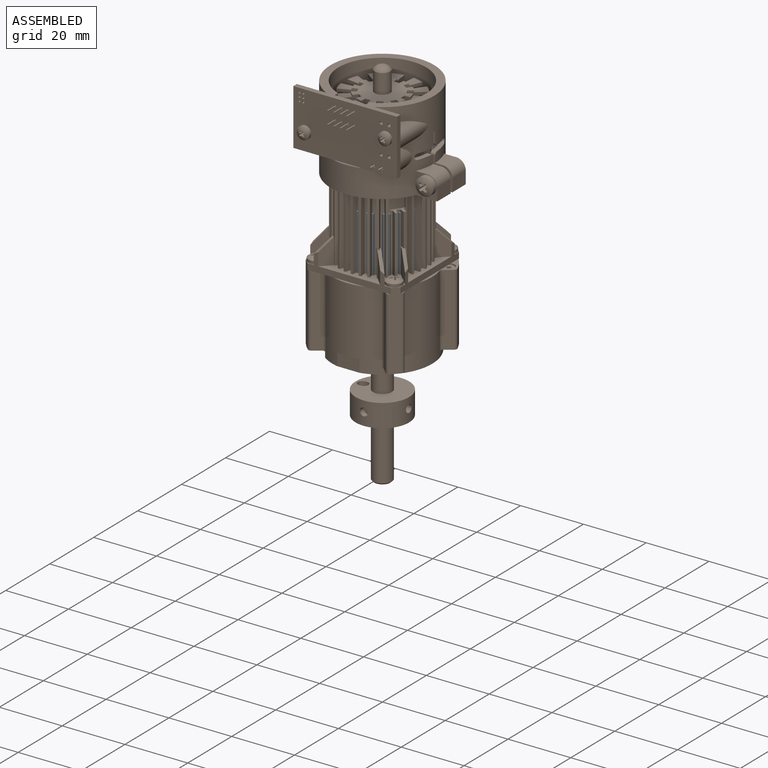
[diagram: assembled view]
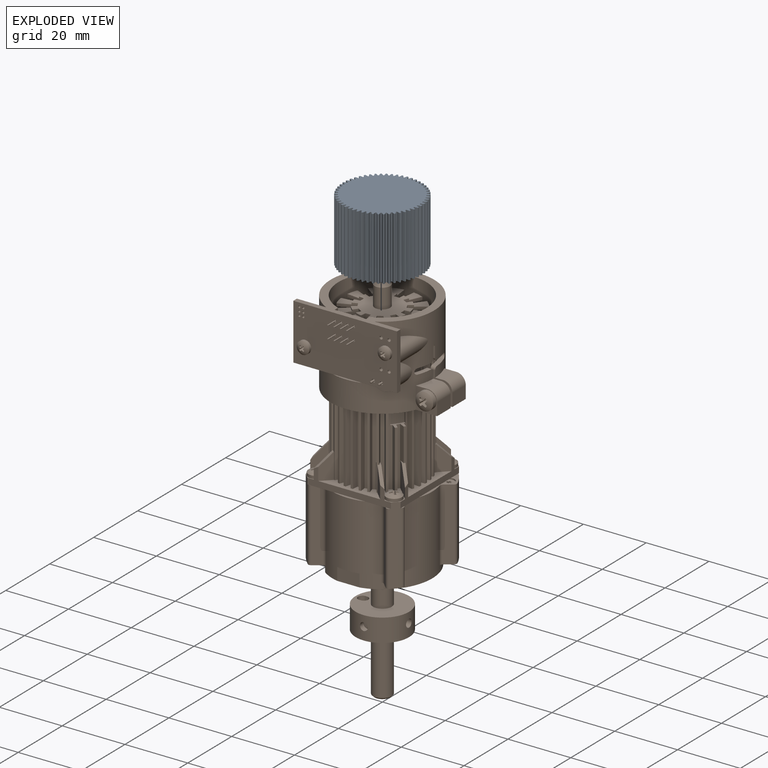
[diagram: exploded view]
GUIDED TOUR — FREECAD ASSEMBLY "Motor_2342012CR"

This assembly has 2 components, labeled P0..P1 below (a component is one placed body or linked part; the same part can appear more than once), held together by 0 modeled joints plus 1 derived contact edge. A joint is a constraint between two components; its type names the relative motion it leaves free:
  CONTACT — a derived adjacency edge — the two components touch in the source model (clearance under 2% of the assembly's diagonal); it is measured from the geometry, not a modeled constraint.
Axis/direction vectors are unit vectors and 'through' points are millimeter coordinates, both in the assembly's world frame.

MATES
  1. CONTACT "contact_0_1": P0 <-> P1, contact direction (0.000, 0.000, -1.000) through (5.31, -10.25, 0.00) mm (derived from contact, not a modeled constraint)

ASSEMBLY ORDER
  1. P0 — the base component [order heuristic]
  2. P1 [order heuristic]
Order-tag legend:
  [order heuristic] — this assembly is geometrically interlocked (no collision-free removal order exists), so components are listed in mate-graph order; insertion feasibility is not verified.

Of the 2 components, 2 carry a construction recipe — the FreeCAD feature program (sketches with constraints, then the solid features that consume them) that regenerates the part from scratch, quoted from this document or from the linked companion document it references; the rest are supplied as boundary geometry only. The tour below walks the components in assembly order: each is shown spotlighted twice — in the assembled view, then in the exploded view, where a leader line traces a displaced component back to its assembled socket (components that stay in place when exploded have no leader line; saturated green if recipe-attached, orange if geometry-only; every other component desaturated gray) — followed by its recipe or geometry summary and the mates that hold it.
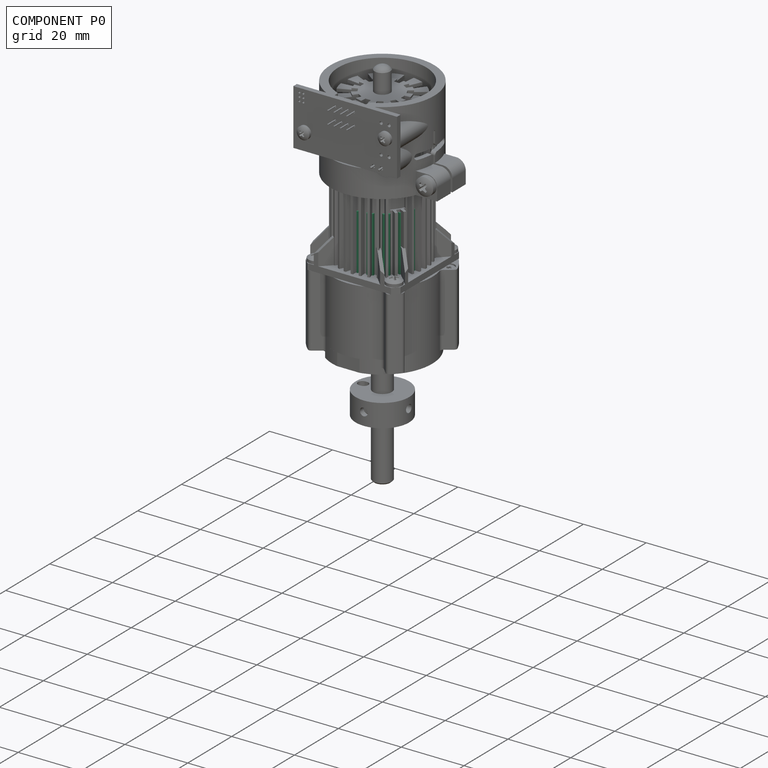
[diagram: component P0 — assembled]
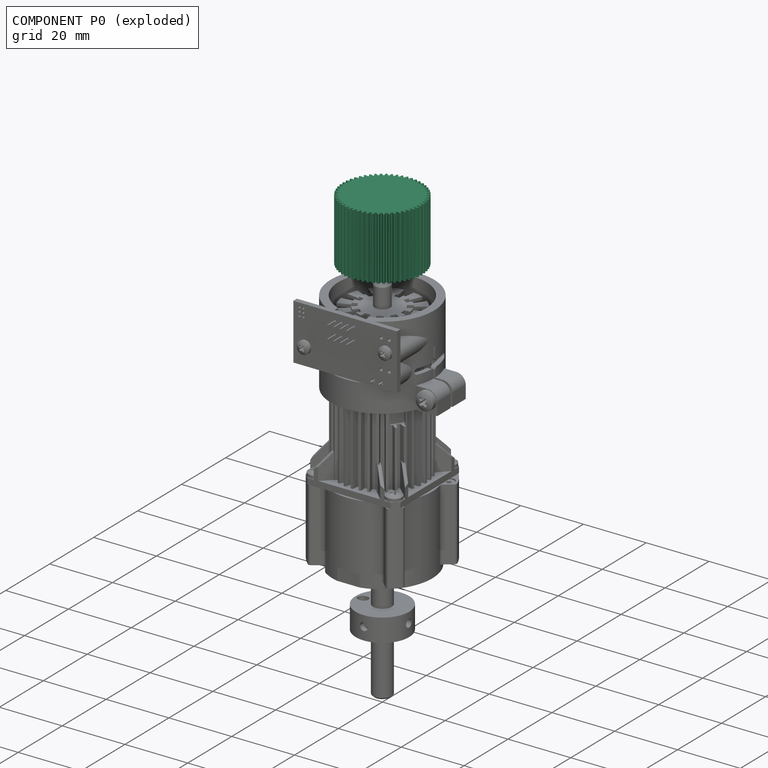
[diagram: component P0 — exploded]
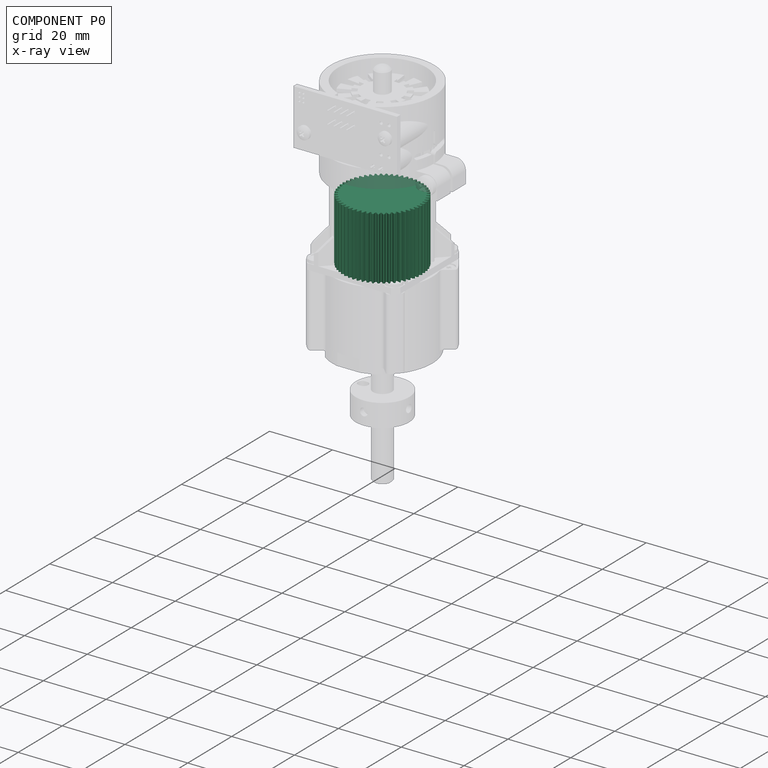
[diagram: component P0 — x-ray view]
COMPONENT P0 — recipe-attached ("Big gear", modeled in this document).
Held by: resting contact with P1 (derived edge).
Construction recipe (the document's own serialized feature program — sketch geometry with constraints, then the solid features built on it; lengths are millimeters unless a unit is written):

FEATURE [PartDesign::FeaturePython] involutegear003  # WARN: FeaturePython — macro-defined, semantics opaque (R4)
  AttacherType = Attacher::AttachEngine3D
  backlash = 0
  beta = 0
  clearance = 0.25
  da = 25.2
  df = 23.175
  double_helix = false
  dw = 24.3
  head = 0
  height = 20
  module = 0.45
  numpoints = 6
  pressure_angle = 20
  properties_from_tool = false
  reversed_backlash = false
  shift = 0
  simple = false
  teeth = 54
  transverse_pitch = 1.41372
  undercut = false
  version = 0.0.3
FEATURE [PartDesign::Body] Body020  label="Big gear"
  Group = -> [involutegear003]
  Origin = -> Origin021
  Tip = -> involutegear003
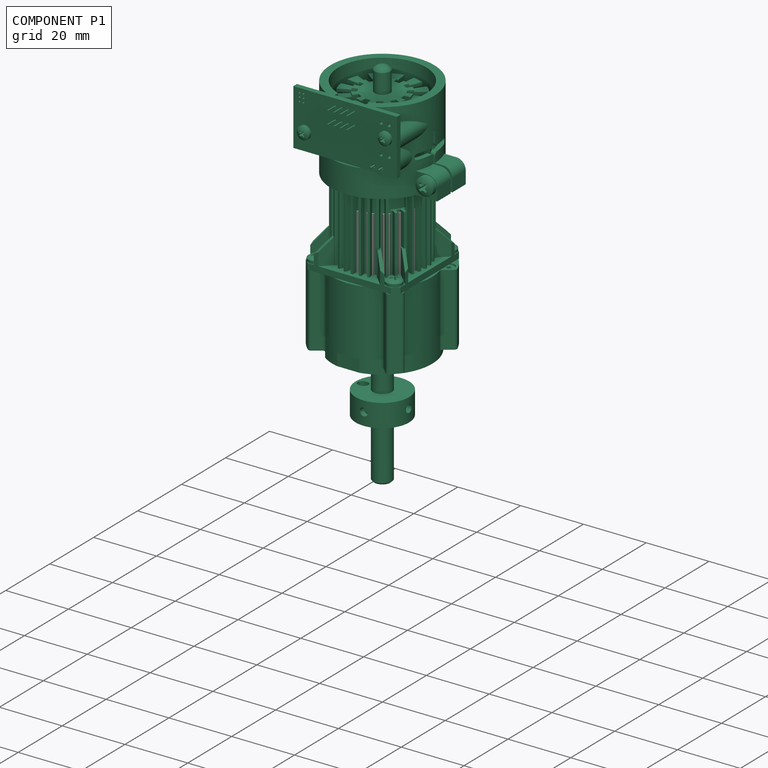
[diagram: component P1 — assembled]
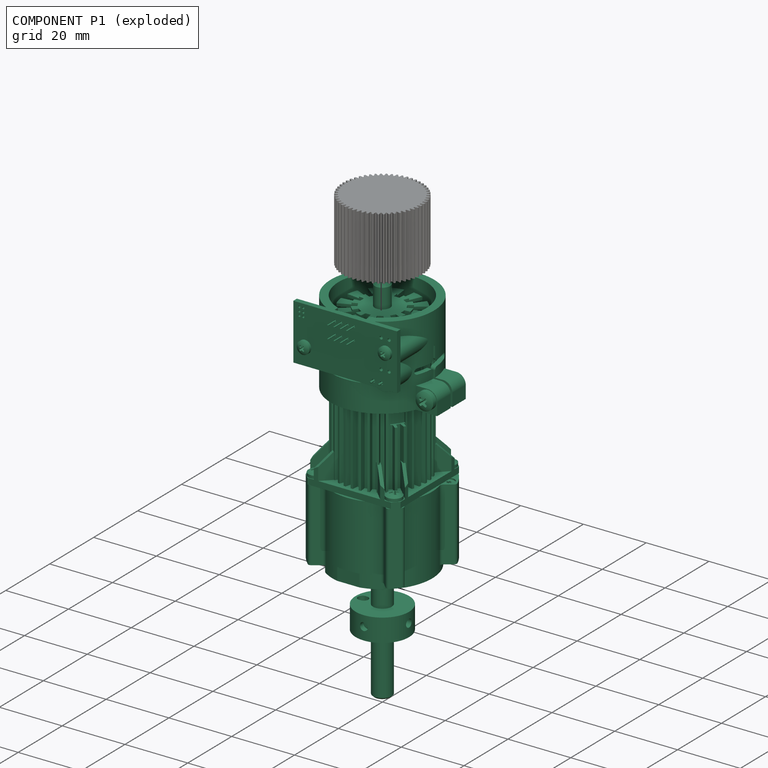
[diagram: component P1 — exploded]
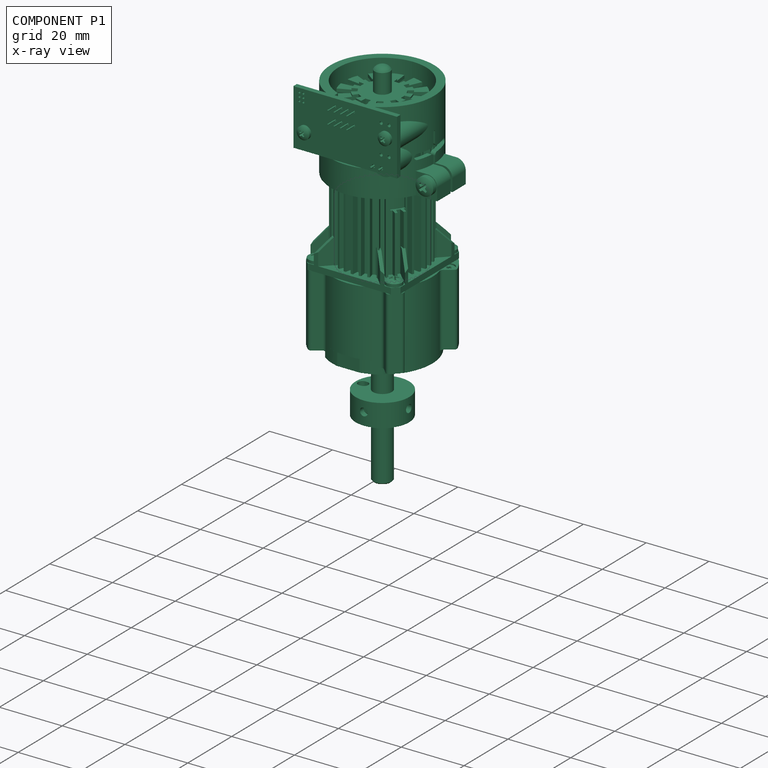
[diagram: component P1 — x-ray view]
COMPONENT P1 — recipe-attached ("FAULHABER 2342L-012CPR", modeled in this document).
Held by: resting contact with P0 (derived edge).
Construction recipe (the document's own serialized feature program — sketch geometry with constraints, then the solid features built on it; lengths are millimeters unless a unit is written):

FEATURE [Sketcher::SketchObject] Sketch
  FullyConstrained = true
  MapMode = 5
  Placement = pos=(0,0,0) rot=(1,0,0;1.5708rad)
  Support = -> [XZ_Plane001]
  sketch-geometry (10):
    g0: LineSegment StartX=-11.5 StartY=0 StartZ=0 EndX=-11.5 EndY=36 EndZ=0
    g1: LineSegment StartX=-11.5 StartY=36 StartZ=0 EndX=-10.5 EndY=36 EndZ=0
    g2: LineSegment StartX=-10.5 StartY=36 StartZ=0 EndX=-10.5 EndY=38.85 EndZ=0
    g3: LineSegment StartX=-10.5 StartY=38.85 StartZ=0 EndX=-10.75 EndY=38.85 EndZ=0
    g4: LineSegment StartX=-10.75 StartY=38.85 StartZ=0 EndX=-10.75 EndY=39.6 EndZ=0
    g5: LineSegment StartX=-10.75 StartY=39.6 StartZ=0 EndX=-10.5 EndY=39.6 EndZ=0
    g6: LineSegment StartX=-10.5 StartY=39.6 StartZ=0 EndX=-10.5 EndY=42 EndZ=0
    g7: LineSegment StartX=-10.5 StartY=42 StartZ=0 EndX=0 EndY=42 EndZ=0
    g8: LineSegment StartX=0 StartY=42 StartZ=0 EndX=0 EndY=0 EndZ=0
    g9: LineSegment StartX=0 StartY=0 StartZ=0 EndX=-11.5 EndY=0 EndZ=0
  constraints (29):
    c: PointOnObject(g0,g-1)
    c: Vertical(g0)
    c: Coincident(g0,g1)
    c: Horizontal(g1)
    c: Coincident(g1,g2)
    c: Coincident(g2,g3)
    c: Coincident(g3,g4)
    c: Coincident(g4,g5)
    c: Horizontal(g5)
    c: Coincident(g5,g6)
    c: Vertical(g6)
    c: Coincident(g6,g7)
    c: Horizontal(g7)
    c: Coincident(g7,g8)
    c: Coincident(g8,g-1)
    c: Vertical(g8)
    c: Coincident(g8,g9)
    c: Coincident(g9,g0)
    c: DistanceX(g1,g1) = 1
    c: DistanceY(g2,g2) = 2.85
    c: Horizontal(g3)
    c: Vertical(g4)
    c: Vertical(g2)
    c: Vertical(g5,g2)
    c: DistanceX(g3,g3) = 0.25
    c: DistanceY(g4,g4) = 0.75
    c: DistanceY(g8,g8) = 42
    c: DistanceX(g9,g9) = 11.5
    c: DistanceY(g1,g6) = 6
FEATURE [PartDesign::Revolution] Revolution
  Angle = 360
  Axis = (0,2e-16,1)
  Base = (0,0,0)
  Placement = pos=(0,0,0) rot=(1,0,0;1.5708rad)
  Profile = -> Sketch
  ReferenceAxis = -> Sketch [V_Axis]
FEATURE [PartDesign::Body] Body  label="Main Motor"
  Group = -> [Sketch,Revolution]
  Origin = -> Origin001
  Tip = -> Revolution
FEATURE [PartDesign::ShapeBinder] ShapeBinder
  Placement = pos=(0,0,0) rot=(1,0,0;1.5708rad)
  Support = -> [Sketch]
  TraceSupport = false
FEATURE [Sketcher::SketchObject] Sketch001
  ExternalGeometry = -> [ShapeBinder]
  FullyConstrained = true
  MapMode = 5
  Placement = pos=(0,0,0) rot=(1,0,0;1.5708rad)
  Support = -> [XZ_Plane002]
  sketch-geometry (12):
    g0: LineSegment StartX=-4.5 StartY=42 StartZ=0 EndX=-4.5 EndY=44.7 EndZ=0
    g1: LineSegment StartX=-4.5 StartY=44.7 StartZ=0 EndX=-10.5 EndY=44.7 EndZ=0
    g2: LineSegment StartX=-10.5 StartY=44.7 StartZ=0 EndX=-10.5 EndY=43 EndZ=0
    g3: LineSegment StartX=-10.5 StartY=43 StartZ=0 EndX=-11.5 EndY=43 EndZ=0
    g4: LineSegment StartX=-11.5 StartY=43 StartZ=0 EndX=-11.5 EndY=36 EndZ=0
    g5: LineSegment StartX=-11.5 StartY=36 StartZ=0 EndX=-10.5 EndY=36 EndZ=0
    g6: LineSegment StartX=-10.5 StartY=36 StartZ=0 EndX=-10.5 EndY=38.85 EndZ=0
    g7: LineSegment StartX=-10.5 StartY=38.85 StartZ=0 EndX=-10.75 EndY=38.85 EndZ=0
    g8: LineSegment StartX=-10.75 StartY=38.85 StartZ=0 EndX=-10.75 EndY=39.6 EndZ=0
    g9: LineSegment StartX=-10.75 StartY=39.6 StartZ=0 EndX=-10.5 EndY=39.6 EndZ=0
    g10: LineSegment StartX=-10.5 StartY=39.6 StartZ=0 EndX=-10.5 EndY=42 EndZ=0
    g11: LineSegment StartX=-10.5 StartY=42 StartZ=0 EndX=-4.5 EndY=42 EndZ=0
  constraints (33):
    c: Coincident(g0,g1)
    c: Horizontal(g1)
    c: Coincident(g1,g2)
    c: Vertical(g2)
    c: Coincident(g2,g3)
    c: Coincident(g3,g4)
    c: Vertical(g4)
    c: Horizontal(g3)
    c: Coincident(g4,g5)
    c: Coincident(g5,g6)
    c: Coincident(g6,g7)
    c: Coincident(g7,g8)
    c: Coincident(g8,g9)
    c: Horizontal(g9)
    c: Coincident(g9,g10)
    c: Vertical(g10)
    c: Coincident(g10,g11)
    c: Coincident(g11,g0)
    c: Horizontal(g11)
    c: Vertical(g0)
    c: Vertical(g6)
    c: Vertical(g8)
    c: Horizontal(g7)
    c: Horizontal(g5)
    c: Equal(g-7,g5)
    c: Coincident(g5,g-7)
    c: Equal(g6,g-6)
    c: Coincident(g-4,g8)
    c: Coincident(g10,g-5)
    c: DistanceX(g0) = -4.5
    c: DistanceX(g1,g1) = 6
    c: DistanceY(g2,g2) = 1.7
    c: DistanceY(g4,g4) = 7
FEATURE [PartDesign::Revolution] Revolution001
  Angle = 360
  Axis = (0,2e-16,1)
  Base = (0,0,0)
  Placement = pos=(0,0,0) rot=(1,0,0;1.5708rad)
  Profile = -> Sketch001
  ReferenceAxis = -> Sketch001 [V_Axis]
FEATURE [Sketcher::SketchObject] Sketch002
  FullyConstrained = true
  MapMode = 5
  Placement = pos=(0,0,0) rot=(1,0,0;1.5708rad)
  Support = -> [XZ_Plane004]
  sketch-geometry (4):
    g0: LineSegment StartX=0 StartY=-4.5 StartZ=0 EndX=-1.5 EndY=-4.5 EndZ=0
    g1: LineSegment StartX=-1.5 StartY=-4.5 StartZ=0 EndX=-1.5 EndY=5.5 EndZ=0
    g2: LineSegment StartX=-1.5 StartY=5.5 StartZ=0 EndX=0 EndY=5.5 EndZ=0
    g3: LineSegment StartX=0 StartY=5.5 StartZ=0 EndX=0 EndY=-4.5 EndZ=0
  constraints (12):
    c: Coincident(g0,g1)
    c: Coincident(g1,g2)
    c: Coincident(g2,g3)
    c: Coincident(g3,g0)
    c: Horizontal(g0)
    c: Horizontal(g2)
    c: Vertical(g1)
    c: Vertical(g3)
    c: PointOnObject(g0,g-2)
    c: DistanceX(g0,g0) = 1.5
    c: DistanceY(g1,g1) = 10
    c: DistanceY(g0) = -4.5
FEATURE [PartDesign::ShapeBinder] ShapeBinder001
  Placement = pos=(0,0,0) rot=(1,0,0;1.5708rad)
  Support = -> [Sketch001]
  TraceSupport = false
FEATURE [PartDesign::ShapeBinder] ShapeBinder002
  Placement = pos=(0,0,0) rot=(1,0,0;1.5708rad)
  Support = -> [Sketch]
  TraceSupport = false
FEATURE [PartDesign::Revolution] Revolution002
  Angle = 360
  Axis = (0,2e-16,1)
  Base = (0,0,0)
  Placement = pos=(0,0,0) rot=(1,0,0;1.5708rad)
  Profile = -> Sketch002
  ReferenceAxis = -> Sketch002 [V_Axis]
FEATURE [Sketcher::SketchObject] Sketch003
  ExternalGeometry = -> [ShapeBinder001]
  FullyConstrained = true
  MapMode = 5
  Placement = pos=(0,0,0) rot=(1,0,0;1.5708rad)
  Support = -> [XZ_Plane003]
  sketch-geometry (4):
    g0: LineSegment StartX=0 StartY=53.7 StartZ=0 EndX=-1 EndY=53.7 EndZ=0
    g1: LineSegment StartX=-1 StartY=53.7 StartZ=0 EndX=-1 EndY=33.7 EndZ=0
    g2: LineSegment StartX=-1 StartY=33.7 StartZ=0 EndX=0 EndY=33.7 EndZ=0
    g3: LineSegment StartX=0 StartY=33.7 StartZ=0 EndX=0 EndY=53.7 EndZ=0
  constraints (12):
    c: Coincident(g0,g1)
    c: Coincident(g1,g2)
    c: Coincident(g2,g3)
    c: Coincident(g3,g0)
    c: Horizontal(g0)
    c: Horizontal(g2)
    c: Vertical(g1)
    c: Vertical(g3)
    c: PointOnObject(g0,g-2)
    c: DistanceX(g0,g0) = 1
    c: DistanceY(g1,g1) = 20
    c: DistanceY(g-3,g0) = 9
FEATURE [PartDesign::Revolution] Revolution003
  Angle = 360
  Axis = (0,2e-16,1)
  Base = (0,0,0)
  Placement = pos=(0,0,0) rot=(1,0,0;1.5708rad)
  Profile = -> Sketch003
  ReferenceAxis = -> Sketch003 [V_Axis]
FEATURE [PartDesign::Chamfer] Chamfer
  Angle = 45
  Base = -> Revolution003 [Edge1]
  BaseFeature = -> Revolution003
  ChamferType = 0
  FlipDirection = false
  Placement = pos=(0,0,0) rot=(1,0,0;1.5708rad)
  Size = 0.1
  Size2 = 1
  SupportTransform = false
  UseAllEdges = false
FEATURE [PartDesign::Body] Body002  label="Thin shaft"
  Group = -> [ShapeBinder001,Sketch003,Revolution003,Chamfer]
  Origin = -> Origin003
  Tip = -> Chamfer
FEATURE [PartDesign::Chamfer] Chamfer001
  Angle = 45
  Base = -> Revolution002 [Edge1]
  BaseFeature = -> Revolution002
  ChamferType = 0
  FlipDirection = false
  Placement = pos=(0,0,0) rot=(1,0,0;1.5708rad)
  Size = 0.2
  Size2 = 1
  SupportTransform = false
  UseAllEdges = false
FEATURE [PartDesign::Body] Body003  label="Thick shaft"
  Group = -> [Sketch002,ShapeBinder002,Revolution002,Chamfer001]
  Origin = -> Origin004
  Tip = -> Chamfer001
FEATURE [PartDesign::FeaturePython] involutegear  # WARN: FeaturePython — macro-defined, semantics opaque (R4)
  AttacherType = Attacher::AttachEngine3D
  backlash = 0
  beta = 0
  clearance = 0.25
  da = 9
  df = 6.975
  double_helix = false
  dw = 8.1
  head = 0
  height = 3
  module = 0.45
  numpoints = 6
  pressure_angle = 20
  properties_from_tool = false
  reversed_backlash = false
  shift = 0
  simple = false
  teeth = 18
  transverse_pitch = 1.41372
  undercut = false
  version = 0.0.3
FEATURE [Sketcher::SketchObject] Sketch004
  FullyConstrained = true
  MapMode = 5
  Placement = pos=(0,0,0) rot=(1,0,0;3.14159rad)
  Support = -> [involutegear]
  sketch-geometry (1):
    g0: Circle CenterX=0 CenterY=0 CenterZ=0 NormalX=0 NormalY=0 NormalZ=1 AngleXU=0 Radius=1.5
  constraints (2):
    c: Coincident(g0,g-1)
    c: Diameter(g0) = 3
FEATURE [PartDesign::Pocket] Pocket
  BaseFeature = -> involutegear
  Direction = (0,0,1)
  Length = 5
  Length2 = 5
  Profile = -> Sketch004
  ReferenceAxis = -> Sketch004 [N_Axis]
  Type = 0
FEATURE [PartDesign::Body] Body005  label="Gear"
  Group = -> [involutegear,Sketch004,Pocket]
  Origin = -> Origin006
  Placement = pos=(0,0,-5) rot=(0,0,1;0.174533rad)
  Tip = -> Pocket
FEATURE [Sketcher::SketchObject] Sketch005
  FullyConstrained = true
  MapMode = 5
  Support = -> [XY_Plane005]
  sketch-geometry (2):
    g0: Circle CenterX=0 CenterY=0 CenterZ=0 NormalX=0 NormalY=0 NormalZ=1 AngleXU=0 Radius=12.5
    g1: Circle CenterX=0 CenterY=0 CenterZ=0 NormalX=0 NormalY=0 NormalZ=1 AngleXU=0 Radius=5
  constraints (5):
    c: Coincident(g0,g-1)
    c: Diameter(g0) = 25
    c: PointOnObject(g1,g-1)
    c: Diameter(g1) = 10
    c: PointOnObject(g1,g-2)
FEATURE [PartDesign::Pad] Pad
  Direction = (0,0,1)
  Length = 0.4
  Length2 = 1.5
  Profile = -> Sketch005
  ReferenceAxis = -> Sketch005 [N_Axis]
  Type = 4
FEATURE [Sketcher::SketchObject] Sketch006
  ExternalGeometry = -> [Pad]
  FullyConstrained = true
  MapMode = 5
  Placement = pos=(0,0,-1.5) rot=(1,0,0;3.14159rad)
  Support = -> [Pad]
  sketch-geometry (4):
    g0: ArcOfCircle CenterX=0 CenterY=11.35 CenterZ=0 NormalX=0 NormalY=0 NormalZ=1 AngleXU=0 Radius=3.85003 StartAngle=3.13754 EndAngle=6.28724
    g1: ArcOfCircle CenterX=0 CenterY=0 CenterZ=0 NormalX=0 NormalY=0 NormalZ=1 AngleXU=0 Radius=12 StartAngle=1.24419 EndAngle=1.89741
    g2: GeomPoint X=0 Y=7.5 Z=0
    g3: GeomPoint X=0 Y=12 Z=0
  constraints (11):
    c: PointOnObject(g0,g-2)
    c: Coincident(g1,g-3)
    c: Coincident(g0,g1)
    c: Coincident(g0,g1)
    c: Radius(g1) = 12
    c: DistanceX(g0,g0) = 7.7
    c: PointOnObject(g2,g0)
    c: PointOnObject(g3,g1)
    c: PointOnObject(g3,g-2)
    c: PointOnObject(g2,g-2)
    c: DistanceY(g2,g3) = 4.5
FEATURE [PartDesign::Pocket] Pocket001
  BaseFeature = -> Pad
  Direction = (0,0,1)
  Length = 5
  Length2 = 5
  Profile = -> Sketch006
  ReferenceAxis = -> Sketch006 [N_Axis]
  Type = 2
FEATURE [PartDesign::PolarPattern] PolarPattern
  Angle = 360
  Axis = -> Sketch006 [N_Axis]
  BaseFeature = -> Pocket001
  Occurrences = 3
  Originals = -> [Pocket001]
FEATURE [Sketcher::SketchObject] Sketch007
  FullyConstrained = true
  MapMode = 5
  Placement = pos=(0,0,0.4) rot=(0,0,1;0rad)
  Support = -> [PolarPattern]
  sketch-geometry (15):
    g0: Circle CenterX=0 CenterY=0 CenterZ=0 NormalX=0 NormalY=0 NormalZ=1 AngleXU=0 Radius=12
    g1: LineSegment StartX=-15.1 StartY=-15.1 StartZ=0 EndX=-15.1 EndY=15.1 EndZ=0
    g2: LineSegment StartX=-15.1 StartY=15.1 StartZ=0 EndX=15.1 EndY=15.1 EndZ=0
    g3: LineSegment StartX=15.1 StartY=15.1 StartZ=0 EndX=15.1 EndY=-15.1 EndZ=0
    g4: LineSegment StartX=15.1 StartY=-15.1 StartZ=0 EndX=-15.1 EndY=-15.1 EndZ=0
    g5: GeomPoint X=0 Y=0 Z=0
    g6: LineSegment StartX=-12.4 StartY=-12.4 StartZ=0 EndX=-12.4 EndY=12.4 EndZ=0
    g7: LineSegment StartX=-12.4 StartY=12.4 StartZ=0 EndX=12.4 EndY=12.4 EndZ=0
    g8: LineSegment StartX=12.4 StartY=12.4 StartZ=0 EndX=12.4 EndY=-12.4 EndZ=0
    g9: LineSegment StartX=12.4 StartY=-12.4 StartZ=0 EndX=-12.4 EndY=-12.4 EndZ=0
    g10: GeomPoint X=0 Y=0 Z=0
    g11: Circle CenterX=-12.4 CenterY=12.4 CenterZ=0 NormalX=0 NormalY=0 NormalZ=1 AngleXU=0 Radius=1.3
    g12: Circle CenterX=12.4 CenterY=12.4 CenterZ=0 NormalX=0 NormalY=0 NormalZ=1 AngleXU=0 Radius=1.3
    g13: Circle CenterX=12.4 CenterY=-12.4 CenterZ=0 NormalX=0 NormalY=0 NormalZ=1 AngleXU=0 Radius=1.3
    g14: Circle CenterX=-12.4 CenterY=-12.4 CenterZ=0 NormalX=0 NormalY=0 NormalZ=1 AngleXU=0 Radius=1.3
  constraints (34):
    c: Coincident(g0,g-1)
    c: Radius(g0) = 12
    c: Coincident(g1,g2)
    c: Coincident(g2,g3)
    c: Coincident(g3,g4)
    c: Coincident(g4,g1)
    c: Horizontal(g2)
    c: Horizontal(g4)
    c: Vertical(g1)
    c: Vertical(g3)
    c: Symmetric(g2,g1,g5)
    c: Coincident(g5,g0)
    c: Equal(g2,g3)
    c: Coincident(g6,g7)
    c: Coincident(g7,g8)
    c: Coincident(g8,g9)
    c: Coincident(g9,g6)
    c: Horizontal(g7)
    c: Horizontal(g9)
    c: Vertical(g6)
    c: Vertical(g8)
    c: Symmetric(g7,g6,g10)
    c: Coincident(g10,g0)
    c: Equal(g8,g7)
    c: DistanceX(g2,g2) = 30.2
    c: DistanceX(g7,g2) = 2.7
    c: Coincident(g11,g6)
    c: Coincident(g12,g7)
    c: Coincident(g13,g8)
    c: Coincident(g14,g6)
    c: Equal(g14,g11)
    c: Equal(g11,g12)
    c: Equal(g12,g13)
    c: Diameter(g11) = 2.6
FEATURE [PartDesign::Pad] Pad001
  BaseFeature = -> PolarPattern
  Direction = (0,0,1)
  Length = 1.9
  Length2 = 10
  Profile = -> Sketch007
  ReferenceAxis = -> Sketch007 [N_Axis]
  Type = 0
FEATURE [PartDesign::Chamfer] Chamfer002
  Angle = 45
  Base = -> Pad001 [Edge38,Edge34,Edge33,Edge36]
  BaseFeature = -> Pad001
  ChamferType = 0
  FlipDirection = false
  Size = 1.8
  Size2 = 1
  SupportTransform = false
  UseAllEdges = false
FEATURE [Sketcher::SketchObject] Sketch008
  FullyConstrained = true
  MapMode = 5
  Placement = pos=(0,0,2.3) rot=(0,0,1;0rad)
  Support = -> [Chamfer002]
  sketch-geometry (2):
    g0: Circle CenterX=0 CenterY=0 CenterZ=0 NormalX=0 NormalY=0 NormalZ=1 AngleXU=0 Radius=11.5
    g1: Circle CenterX=0 CenterY=0 CenterZ=0 NormalX=0 NormalY=0 NormalZ=1 AngleXU=0 Radius=12.05
  constraints (4):
    c: Coincident(g0,g-1)
    c: Coincident(g1,g0)
    c: Diameter(g0) = 23
    c: Diameter(g1) = 24.1
FEATURE [PartDesign::Pad] Pad002
  BaseFeature = -> Chamfer002
  Direction = (0,0,1)
  Length = 36.5
  Length2 = 10
  Profile = -> Sketch008
  ReferenceAxis = -> Sketch008 [N_Axis]
  Type = 0
FEATURE [Sketcher::SketchObject] Sketch009
  ExternalGeometry = -> [Pad002]
  FullyConstrained = true
  MapMode = 5
  Placement = pos=(0,0,2.3) rot=(0,0,1;0rad)
  Support = -> [Pad002]
  sketch-geometry (7):
    g0: GeomPoint X=0 Y=12.05 Z=0
    g1: LineSegment StartX=-0.5 StartY=11.95 StartZ=0 EndX=0.5 EndY=11.95 EndZ=0
    g2: LineSegment StartX=0.5 StartY=11.95 StartZ=0 EndX=0.35 EndY=13.95 EndZ=0
    g3: LineSegment StartX=0.35 StartY=13.95 StartZ=0 EndX=-0.35 EndY=13.95 EndZ=0
    g4: LineSegment StartX=-0.35 StartY=13.95 StartZ=0 EndX=-0.5 EndY=11.95 EndZ=0
    g5: GeomPoint X=0 Y=11.95 Z=0
    g6: GeomPoint X=0 Y=13.95 Z=0
  constraints (16):
    c: PointOnObject(g0,g-3)
    c: PointOnObject(g0,g-2)
    c: Horizontal(g1)
    c: Coincident(g1,g2)
    c: Coincident(g2,g3)
    c: Horizontal(g3)
    c: Coincident(g3,g4)
    c: Coincident(g1,g4)
    c: Symmetric(g1,g1,g5)
    c: Vertical(g5,g0)
    c: PointOnObject(g6,g-2)
    c: Symmetric(g2,g3,g6)
    c: DistanceX(g3,g3) = 0.7
    c: DistanceX(g1,g1) = 1
    c: DistanceY(g1,g2) = 2
    c: DistanceY(g1,g0) = 0.1
FEATURE [PartDesign::Pad] Pad003
  BaseFeature = -> Pad002
  Direction = (0,0,1)
  Length = 36.5
  Length2 = 10
  Profile = -> Sketch009
  ReferenceAxis = -> Sketch009 [N_Axis]
  Type = 0
FEATURE [PartDesign::PolarPattern] PolarPattern001
  Angle = 360
  Axis = -> Sketch009 [N_Axis]
  BaseFeature = -> Pad003
  Occurrences = 36
  Originals = -> [Pad003]
FEATURE [Sketcher::SketchObject] Sketch010
  FullyConstrained = true
  MapMode = 5
  Placement = pos=(0,0,38.8) rot=(0,0,1;0rad)
  Support = -> [PolarPattern001]
  sketch-geometry (6):
    g0: ArcOfCircle CenterX=0 CenterY=0 CenterZ=0 NormalX=0 NormalY=0 NormalZ=1 AngleXU=0 Radius=11 StartAngle=5.49779 EndAngle=5.84685
    g1: ArcOfCircle CenterX=0 CenterY=0 CenterZ=0 NormalX=0 NormalY=0 NormalZ=1 AngleXU=0 Radius=15 StartAngle=5.49779 EndAngle=5.84685
    g2: LineSegment StartX=10.6066 StartY=-10.6066 StartZ=0 EndX=7.77817 EndY=-7.77817 EndZ=0
    g3: LineSegment StartX=9.96939 StartY=-4.6488 StartZ=0 EndX=13.5946 EndY=-6.33927 EndZ=0
    g4: LineSegment StartX=0 StartY=0 StartZ=0 EndX=10.6066 EndY=-10.6066 EndZ=0
    g5: LineSegment StartX=13.5946 StartY=-6.33927 StartZ=0 EndX=0 EndY=0 EndZ=0
  constraints (16):
    c: Coincident(g0,g-1)
    c: Coincident(g1,g0)
    c: Coincident(g2,g1)
    c: Coincident(g2,g0)
    c: Coincident(g3,g0)
    c: Coincident(g3,g1)
    c: Coincident(g4,g0)
    c: Coincident(g4,g1)
    c: Coincident(g5,g1)
    c: Coincident(g5,g0)
    c: Parallel(g4,g2)
    c: Parallel(g3,g5)
    c: Angle(g4,g5) = 0.349066
    c: Angle(g5,g-1) = 0.436332
    c: Radius(g0) = 11
    c: Radius(g1) = 15
FEATURE [PartDesign::Pocket] Pocket002
  BaseFeature = -> PolarPattern001
  Direction = (0,0,-1)
  Length = 18
  Length2 = 5
  Profile = -> Sketch010
  ReferenceAxis = -> Sketch010 [N_Axis]
  Type = 0
FEATURE [PartDesign::PolarPattern] PolarPattern002
  Angle = 360
  Axis = -> Sketch010 [N_Axis]
  BaseFeature = -> Pocket002
  Occurrences = 3
  Originals = -> [Pocket002]
FEATURE [Sketcher::SketchObject] Sketch011
  FullyConstrained = true
  MapMode = 5
  Placement = pos=(0,0,38.8) rot=(0,0,1;0rad)
  Support = -> [PolarPattern002]
  sketch-geometry (6):
    g0: LineSegment StartX=0 StartY=0 StartZ=0 EndX=8.60365 EndY=-12.2873 EndZ=0
    g1: LineSegment StartX=0 StartY=0 StartZ=0 EndX=14.9429 EndY=1.30734 EndZ=0
    g2: LineSegment StartX=14.9429 StartY=1.30734 StartZ=0 EndX=10.9581 EndY=0.958713 EndZ=0
    g3: LineSegment StartX=8.60365 StartY=-12.2873 StartZ=0 EndX=6.30934 EndY=-9.01067 EndZ=0
    g4: ArcOfCircle CenterX=0 CenterY=0 CenterZ=0 NormalX=0 NormalY=0 NormalZ=1 AngleXU=0 Radius=11 StartAngle=5.32325 EndAngle=6.37045
    g5: ArcOfCircle CenterX=0 CenterY=0 CenterZ=0 NormalX=0 NormalY=0 NormalZ=1 AngleXU=0 Radius=15 StartAngle=5.32325 EndAngle=6.37045
  constraints (16):
    c: Coincident(g0,g-1)
    c: Coincident(g1,g0)
    c: Coincident(g2,g1)
    c: PointOnObject(g2,g1)
    c: Coincident(g3,g0)
    c: PointOnObject(g3,g0)
    c: Coincident(g4,g0)
    c: Coincident(g4,g3)
    c: Coincident(g4,g2)
    c: Coincident(g5,g4)
    c: Coincident(g5,g2)
    c: Coincident(g5,g3)
    c: Radius(g4) = 11
    c: Radius(g5) = 15
    c: Angle(g0,g1) = 1.0472
    c: Angle(g-1,g1) = 0.0872665
FEATURE [PartDesign::Pocket] Pocket003
  BaseFeature = -> PolarPattern002
  Direction = (0,0,-1)
  Length = 7
  Length2 = 5
  Profile = -> Sketch011
  ReferenceAxis = -> Sketch011 [N_Axis]
  Type = 0
FEATURE [Sketcher::SketchObject] Sketch012
  ExternalGeometry = -> [Pocket003]
  FullyConstrained = true
  MapMode = 5
  Placement = pos=(0,0,2.3) rot=(0,0,1;0rad)
  Support = -> [Pocket003]
  sketch-geometry (10):
    g0: LineSegment StartX=11.2816 StartY=-15.1 StartZ=0 EndX=9.86741 EndY=-15.1 EndZ=0
    g1: LineSegment StartX=9.86741 StartY=-15.1 StartZ=0 EndX=5.34193 EndY=-10.5745 EndZ=0
    g2: LineSegment StartX=5.34193 StartY=-10.5745 StartZ=0 EndX=6.04903 EndY=-9.86741 EndZ=0
    g3: LineSegment StartX=6.04903 StartY=-9.86741 StartZ=0 EndX=11.2816 EndY=-15.1 EndZ=0
    g4: LineSegment StartX=15.1 StartY=-11.2816 StartZ=0 EndX=15.1 EndY=-9.86741 EndZ=0
    g5: LineSegment StartX=15.1 StartY=-9.86741 StartZ=0 EndX=10.5745 EndY=-5.34193 EndZ=0
    g6: LineSegment StartX=10.5745 StartY=-5.34193 StartZ=0 EndX=9.86741 EndY=-6.04903 EndZ=0
    g7: LineSegment StartX=9.86741 StartY=-6.04903 StartZ=0 EndX=15.1 EndY=-11.2816 EndZ=0
    g8: LineSegment StartX=11.2816 StartY=-15.1 StartZ=0 EndX=13.3 EndY=-15.1 EndZ=0
    g9: LineSegment StartX=15.1 StartY=-13.3 StartZ=0 EndX=15.1 EndY=-11.2816 EndZ=0
  constraints (28):
    c: PointOnObject(g0,g-3)
    c: PointOnObject(g0,g-3)
    c: Coincident(g0,g1)
    c: Coincident(g1,g2)
    c: Coincident(g2,g3)
    c: Coincident(g3,g0)
    c: Distance(g0,g3) = 1
    c: Parallel(g1,g3)
    c: Angle(g2) = 0.785398
    c: Angle(g1,g-3) = 0.785398
    c: PointOnObject(g4,g-4)
    c: PointOnObject(g4,g-4)
    c: Coincident(g4,g5)
    c: Coincident(g5,g6)
    c: Coincident(g6,g7)
    c: Coincident(g7,g4)
    c: Parallel(g7,g5)
    c: Parallel(g5,g3)
    c: Equal(g5,g1)
    c: Equal(g6,g2)
    c: Equal(g0,g4)
    c: Coincident(g8,g0)
    c: Coincident(g8,g-3)
    c: Coincident(g9,g-4)
    c: Coincident(g9,g4)
    c: Equal(g9,g8)
    c: Distance(g0,g4) = 5.4
    c: Distance(g5) = 6.4
FEATURE [PartDesign::Pad] Pad004
  BaseFeature = -> Pocket003
  Direction = (0,0,1)
  Length = 8
  Length2 = 10
  Profile = -> Sketch012
  ReferenceAxis = -> Sketch012 [N_Axis]
  Type = 0
FEATURE [PartDesign::PolarPattern] PolarPattern003
  Angle = 360
  Axis = -> Sketch012 [N_Axis]
  BaseFeature = -> Pad004
  Occurrences = 4
  Originals = -> [Pad004]
FEATURE [Sketcher::SketchObject] Sketch013
  ExternalGeometry = -> [PolarPattern003]
  FullyConstrained = true
  MapMode = 5
  Placement = pos=(0,0,0) rot=(1,0,0;1.5708rad)
  Support = -> [XZ_Plane005]
  sketch-geometry (3):
    g0: LineSegment StartX=-18.9 StartY=10.3 StartZ=0 EndX=-18.9 EndY=5.5 EndZ=0
    g1: LineSegment StartX=-18.9 StartY=5.5 StartZ=0 EndX=-14.1 EndY=10.3 EndZ=0
    g2: LineSegment StartX=-14.1 StartY=10.3 StartZ=0 EndX=-18.9 EndY=10.3 EndZ=0
  constraints (9):
    c: Vertical(g0)
    c: Coincident(g0,g1)
    c: Coincident(g1,g2)
    c: Coincident(g2,g0)
    c: Horizontal(g2)
    c: DistanceY(g0) = 5.5
    c: Equal(g0,g2)
    c: Horizontal(g0,g-3)
    c: DistanceX(g-3,g1) = 1
FEATURE [PartDesign::Groove] Groove
  Angle = 360
  Axis = (0,-2e-16,1)
  Base = (0,0,0)
  BaseFeature = -> PolarPattern003
  Profile = -> Sketch013
  ReferenceAxis = -> Sketch013 [V_Axis]
  Reversed = true
FEATURE [PartDesign::Body] Body004  label="Cage"
  Group = -> [Sketch005,Pad,Sketch006,Pocket001,PolarPattern,Sketch007,Pad001,Chamfer002,Sketch008,Pad002,Sketch009,Pad003,PolarPattern001,Sketch010,Pocket002,PolarPattern002,Sketch011,Pocket003,Sketch012,Pad004,PolarPattern003,Sketch013,Groove]
  Origin = -> Origin005
  Tip = -> Groove
FEATURE [Sketcher::SketchObject] Sketch014
  ExternalGeometry = -> [Revolution001]
  FullyConstrained = true
  MapMode = 5
  Placement = pos=(0,1.58e-14,36) rot=(1,0,0;3.14159rad)
  Support = -> [Revolution001]
  sketch-geometry (6):
    g0: ArcOfCircle CenterX=0 CenterY=-1e-16 CenterZ=0 NormalX=0 NormalY=0 NormalZ=1 AngleXU=0 Radius=10.5 StartAngle=-1.004e-13 EndAngle=0.238661
    g1: ArcOfCircle CenterX=0 CenterY=-1e-16 CenterZ=0 NormalX=0 NormalY=0 NormalZ=1 AngleXU=0 Radius=11.5 StartAngle=0 EndAngle=0.238661
    g2: LineSegment StartX=0 StartY=-1e-16 StartZ=0 EndX=11.174 EndY=2.71862 EndZ=0
    g3: LineSegment StartX=0 StartY=-1e-16 StartZ=0 EndX=11.5 EndY=-1e-16 EndZ=0
    g4: LineSegment StartX=10.2024 StartY=2.48222 StartZ=0 EndX=11.174 EndY=2.71862 EndZ=0
    g5: LineSegment StartX=11.5 StartY=-1e-16 StartZ=0 EndX=10.5 EndY=-1e-16 EndZ=0
  constraints (16):
    c: Coincident(g0,g-4)
    c: PointOnObject(g0,g-3)
    c: Coincident(g1,g0)
    c: PointOnObject(g1,g-4)
    c: Coincident(g2,g0)
    c: Coincident(g2,g1)
    c: Coincident(g3,g0)
    c: Coincident(g3,g1)
    c: PointOnObject(g0,g3)
    c: PointOnObject(g0,g2)
    c: Coincident(g4,g0)
    c: Coincident(g4,g1)
    c: Coincident(g5,g1)
    c: Coincident(g5,g0)
    c: Distance(g0,g0) = 2.5
    c: Horizontal(g3)
FEATURE [PartDesign::Pocket] Pocket004
  BaseFeature = -> Revolution001
  Direction = (0,7e-16,1)
  Length = 6
  Length2 = 5
  Placement = pos=(0,0,0) rot=(1,0,0;1.5708rad)
  Profile = -> Sketch014
  ReferenceAxis = -> Sketch014 [N_Axis]
  Type = 0
FEATURE [Sketcher::SketchObject] Sketch015
  ExternalGeometry = -> [Pocket004]
  FullyConstrained = false
  MapMode = 5
  Placement = pos=(0,1.89e-14,43) rot=(0,0,1;3.14159rad)
  Support = -> [Pocket004]
  sketch-geometry (14):
    g0: LineSegment StartX=0 StartY=0 StartZ=0 EndX=-11.0459 EndY=3.19958 EndZ=0
    g1: LineSegment StartX=0 StartY=0 StartZ=0 EndX=-11.4892 EndY=-0.497745 EndZ=0
    g2: ArcOfCircle CenterX=0 CenterY=0 CenterZ=0 NormalX=0 NormalY=0 NormalZ=1 AngleXU=0 Radius=11.5 StartAngle=2.85965 EndAngle=3.18489
    g3: LineSegment StartX=-11.0459 StartY=3.19958 StartZ=0 EndX=-10.0854 EndY=2.92136 EndZ=0
    g4: LineSegment StartX=-11.4892 StartY=-0.497745 StartZ=0 EndX=-10.4902 EndY=-0.454463 EndZ=0
    g5: ArcOfCircle CenterX=0 CenterY=0 CenterZ=0 NormalX=0 NormalY=0 NormalZ=1 AngleXU=0 Radius=10.5 StartAngle=2.85965 EndAngle=3.18489
    g6: LineSegment StartX=0 StartY=0 StartZ=0 EndX=-13.6068 EndY=3.31051 EndZ=0
    g7: GeomPoint X=-10.2024 Y=2.48222 Z=0
    g8: GeomPoint X=-10.5 Y=0 Z=0
    g9: LineSegment StartX=-10.4902 StartY=-0.454463 StartZ=0 EndX=-10.5 EndY=0 EndZ=0
    g10: LineSegment StartX=-10.4902 StartY=-0.454463 StartZ=0 EndX=-10.5 EndY=0 EndZ=0
    g11: LineSegment StartX=-10.2024 StartY=2.48222 StartZ=0 EndX=-10.0971 EndY=2.88055 EndZ=0
    g12: LineSegment StartX=-10.2024 StartY=2.48222 StartZ=0 EndX=-10.0971 EndY=2.88055 EndZ=0
    g13: LineSegment StartX=-10.0854 StartY=2.92136 StartZ=0 EndX=-10.2024 EndY=2.48222 EndZ=0
  constraints (30):
    c: Coincident(g0,g-1)
    c: Coincident(g1,g0)
    c: Coincident(g2,g0)
    c: Coincident(g2,g0)
    c: Coincident(g2,g1)
    c: Coincident(g3,g2)
    c: PointOnObject(g3,g0)
    c: Coincident(g4,g2)
    c: PointOnObject(g4,g1)
    c: PointOnObject(g3,g-4)
    c: PointOnObject(g2,g-3)
    c: Distance(g4,g3) = 3.4
    c: Coincident(g5,g2)
    c: Coincident(g5,g4)
    c: Coincident(g5,g3)
    c: Coincident(g6,g2)
    c: PointOnObject(g7,g6)
    c: PointOnObject(g7,g-4)
    c: PointOnObject(g8,g-1)
    c: PointOnObject(g8,g-4)
    c: Distance(g8,g7) = 2.5
    c: Coincident(g9,g4)
    c: Coincident(g10,g4)
    c: Coincident(g10,g8)
    c: Coincident(g11,g7)
    c: Coincident(g12,g7)
    c: Coincident(g13,g3)
    c: Angle(g6) = 2.90293
    c: Angle(g3,g4) = 0.325241
    c: Angle(g3,g6) = 0.0432842
FEATURE [PartDesign::Pad] Pad005
  BaseFeature = -> Pocket004
  Direction = (0,8e-16,1)
  Length = 1.4
  Length2 = 10
  Placement = pos=(0,0,0) rot=(1,0,0;1.5708rad)
  Profile = -> Sketch015
  ReferenceAxis = -> Sketch015 [N_Axis]
  Type = 0
FEATURE [PartDesign::Body] Body001  label="Top"
  Group = -> [Sketch001,ShapeBinder,Revolution001,Sketch014,Pocket004,Sketch015,Pad005]
  Origin = -> Origin002
  Tip = -> Pad005
FEATURE [Sketcher::SketchObject] Sketch016
  FullyConstrained = false
  MapMode = 5
  Support = -> [XY_Plane007]
  sketch-geometry (37):
    g0: Circle CenterX=0 CenterY=0 CenterZ=0 NormalX=0 NormalY=0 NormalZ=1 AngleXU=0 Radius=6
    g1: ArcOfCircle CenterX=0 CenterY=0 CenterZ=0 NormalX=0 NormalY=0 NormalZ=1 AngleXU=0 Radius=15.9 StartAngle=0.993244 EndAngle=2.14758
    g2: LineSegment StartX=28.489 StartY=-28.489 StartZ=0 EndX=-28.489 EndY=28.489 EndZ=0
    g3: GeomPoint X=0 Y=0 Z=0
    g4: ArcOfCircle CenterX=0 CenterY=0 CenterZ=0 NormalX=0 NormalY=0 NormalZ=1 AngleXU=0 Radius=20 StartAngle=0.410684 EndAngle=0.841805
    g5: ArcOfCircle CenterX=0 CenterY=0 CenterZ=0 NormalX=0 NormalY=0 NormalZ=1 AngleXU=0 Radius=20 StartAngle=2.27716 EndAngle=2.43522
    g6: ArcOfCircle CenterX=0 CenterY=0 CenterZ=0 NormalX=0 NormalY=0 NormalZ=1 AngleXU=0 Radius=20 StartAngle=3.55228 EndAngle=3.9834
    g7: ArcOfCircle CenterX=0 CenterY=0 CenterZ=0 NormalX=0 NormalY=0 NormalZ=1 AngleXU=0 Radius=20 StartAngle=5.41876 EndAngle=5.57682
    g8: LineSegment StartX=12.0701 StartY=14.9813 StartZ=0 EndX=9.81308 EndY=13.3486 EndZ=0
    g9: LineSegment StartX=18.0062 StartY=6.77526 StartZ=0 EndX=15.7492 EndY=5.14256 EndZ=0
    g10: LineSegment StartX=-18.0062 StartY=-6.77526 StartZ=0 EndX=-15.7492 EndY=-5.14256 EndZ=0
    g11: LineSegment StartX=-12.0701 StartY=-14.9813 StartZ=0 EndX=-9.81308 EndY=-13.3486 EndZ=0
    g12: ArcOfCircle CenterX=0 CenterY=0 CenterZ=0 NormalX=0 NormalY=0 NormalZ=1 AngleXU=0 Radius=15.9 StartAngle=4.13484 EndAngle=5.28918
    g13: LineSegment StartX=-15.1609 StartY=11.6253 StartZ=0 EndX=-13.4588 EndY=9.92326 EndZ=0
    g14: LineSegment StartX=-11.6253 StartY=15.1609 StartZ=0 EndX=-9.92326 EndY=13.4588 EndZ=0
    g15: LineSegment StartX=15.1609 StartY=-11.6253 StartZ=0 EndX=13.4588 EndY=-9.92326 EndZ=0
    g16: LineSegment StartX=11.6253 StartY=-15.1609 StartZ=0 EndX=9.92326 EndY=-13.4588 EndZ=0
    g17: ArcOfCircle CenterX=0 CenterY=0 CenterZ=0 NormalX=0 NormalY=0 NormalZ=1 AngleXU=0 Radius=15.9 StartAngle=2.5648 EndAngle=3.40084
    g18: ArcOfCircle CenterX=0 CenterY=0 CenterZ=0 NormalX=0 NormalY=0 NormalZ=1 AngleXU=0 Radius=15.9 StartAngle=5.7064 EndAngle=6.54243
    g19: LineSegment StartX=-28.489 StartY=-28.489 StartZ=0 EndX=28.489 EndY=28.489 EndZ=0
    g20: LineSegment StartX=12.0701 StartY=14.9813 StartZ=0 EndX=-18.0062 EndY=-6.77526 EndZ=0
    g21: ArcOfCircle CenterX=-14.1659 CenterY=9.21615 CenterZ=0 NormalX=0 NormalY=0 NormalZ=1 AngleXU=0 Radius=1 StartAngle=5.7064 EndAngle=7.06858
    g22: ArcOfCircle CenterX=-14.4538 CenterY=12.3324 CenterZ=0 NormalX=0 NormalY=0 NormalZ=1 AngleXU=0 Radius=1 StartAngle=2.43522 EndAngle=3.92699
    g23: ArcOfCircle CenterX=-12.3324 CenterY=14.4538 CenterZ=0 NormalX=0 NormalY=0 NormalZ=1 AngleXU=0 Radius=1 StartAngle=0.785398 EndAngle=2.27716
    g24: ArcOfCircle CenterX=9.21615 CenterY=-14.1659 CenterZ=0 NormalX=0 NormalY=0 NormalZ=1 AngleXU=0 Radius=1 StartAngle=0.785398 EndAngle=2.14758
    g25: ArcOfCircle CenterX=12.3324 CenterY=-14.4538 CenterZ=0 NormalX=0 NormalY=0 NormalZ=1 AngleXU=0 Radius=1 StartAngle=3.92699 EndAngle=5.41876
    g26: ArcOfCircle CenterX=14.4538 CenterY=-12.3324 CenterZ=0 NormalX=0 NormalY=0 NormalZ=1 AngleXU=0 Radius=1 StartAngle=5.57682 EndAngle=7.06858
    g27: ArcOfCircle CenterX=14.1659 CenterY=-9.21615 CenterZ=0 NormalX=0 NormalY=0 NormalZ=1 AngleXU=0 Radius=1 StartAngle=2.5648 EndAngle=3.92699
    g28: ArcOfCircle CenterX=-9.21615 CenterY=14.1659 CenterZ=0 NormalX=0 NormalY=0 NormalZ=1 AngleXU=0 Radius=1 StartAngle=3.92699 EndAngle=5.28918
    g29: ArcOfCircle CenterX=9.22697 CenterY=14.1588 CenterZ=0 NormalX=0 NormalY=0 NormalZ=1 AngleXU=0 Radius=1 StartAngle=4.13484 EndAngle=5.33863
    g30: ArcOfCircle CenterX=12.6562 CenterY=14.1711 CenterZ=0 NormalX=0 NormalY=0 NormalZ=1 AngleXU=0 Radius=1 StartAngle=0.841805 EndAngle=2.19704
    g31: ArcOfCircle CenterX=17.4201 CenterY=7.5855 CenterZ=0 NormalX=0 NormalY=0 NormalZ=1 AngleXU=0 Radius=1 StartAngle=5.33863 EndAngle=6.69387
    g32: ArcOfCircle CenterX=16.3353 CenterY=4.33233 CenterZ=0 NormalX=0 NormalY=0 NormalZ=1 AngleXU=0 Radius=1 StartAngle=2.19704 EndAngle=3.40084
    g33: ArcOfCircle CenterX=-17.4201 CenterY=-7.5855 CenterZ=0 NormalX=0 NormalY=0 NormalZ=1 AngleXU=0 Radius=1 StartAngle=2.19704 EndAngle=3.55228
    g34: ArcOfCircle CenterX=-16.3353 CenterY=-4.33233 CenterZ=0 NormalX=0 NormalY=0 NormalZ=1 AngleXU=0 Radius=1 StartAngle=5.33863 EndAngle=6.54243
    g35: ArcOfCircle CenterX=-9.22697 CenterY=-14.1588 CenterZ=0 NormalX=0 NormalY=0 NormalZ=1 AngleXU=0 Radius=1 StartAngle=0.993244 EndAngle=2.19704
    g36: ArcOfCircle CenterX=-12.6562 CenterY=-14.1711 CenterZ=0 NormalX=0 NormalY=0 NormalZ=1 AngleXU=0 Radius=1 StartAngle=3.9834 EndAngle=5.33863
  constraints (90):
    c: Coincident(g0,g-1)
    c: Coincident(g1,g0)
    c: Diameter(g1) = 31.8
    c: Diameter(g0) = 12
    c: Coincident(g3,g0)
    c: Symmetric(g2,g2,g0)
    c: Coincident(g4,g0)
    c: Coincident(g5,g0)
    c: Coincident(g6,g0)
    c: Coincident(g7,g0)
    c: Equal(g5,g4)
    c: Equal(g6,g7)
    c: Equal(g7,g4)
    c: Radius(g4) = 20
    c: Parallel(g8,g9)
    c: Parallel(g9,g10)
    c: Parallel(g10,g11)
    c: Equal(g1,g12)
    c: Coincident(g1,g12)
    c: Parallel(g16,g15)
    c: Parallel(g15,g13)
    c: Parallel(g13,g14)
    c: Parallel(g14,g2)
    c: Equal(g1,g17)
    c: Coincident(g1,g17)
    c: Equal(g12,g18)
    c: Coincident(g12,g18)
    c: Symmetric(g19,g19,g0)
    c: Angle(g2) = 2.35619
    c: Perpendicular(g2,g19)
    c: Parallel(g8,g20)
    c: Tangent(g13,g21) = 1.5708
    c: Tangent(g17,g21) = 1.5708
    c: Tangent(g5,g22) = -1.5708
    c: Tangent(g13,g22) = -1.5708
    c: Tangent(g14,g23) = 1.5708
    c: Tangent(g5,g23) = -1.5708
    c: Tangent(g12,g24) = 1.5708
    c: Tangent(g16,g24) = -1.5708
    c: Tangent(g7,g25) = -1.5708
    c: Tangent(g16,g25) = 1.5708
    c: Tangent(g15,g26) = -1.5708
    c: Tangent(g7,g26) = -1.5708
    c: Tangent(g18,g27) = 1.5708
    c: Tangent(g15,g27) = 1.5708
    c: Tangent(g1,g28) = 1.5708
    c: Tangent(g14,g28) = -1.5708
    c: Distance(g13,g2) = 2.5
    c: Distance(g14,g2) = 2.5
    c: Distance(g16,g2) = 2.5
    c: Distance(g15,g2) = 2.5
    c: Equal(g24,g25)
    c: Equal(g25,g26)
    c: Equal(g26,g27)
    c: Equal(g27,g28)
    c: Equal(g28,g23)
    c: Equal(g23,g22)
    c: Equal(g22,g21)
    c: Radius(g27) = 1
    c: Tangent(g1,g29) = 1.5708
    c: Tangent(g8,g29) = 1.5708
    c: Tangent(g8,g30) = -1.5708
    c: Tangent(g4,g30) = -1.5708
    c: Tangent(g4,g31) = -1.5708
    c: Tangent(g9,g31) = 1.5708
    c: Tangent(g9,g32) = -1.5708
    c: Tangent(g18,g32) = 1.5708
    c: Tangent(g6,g33) = -1.5708
    c: Tangent(g10,g33) = 1.5708
    c: Tangent(g17,g34) = 1.5708
    c: Tangent(g10,g34) = -1.5708
    c: Tangent(g11,g35) = 1.5708
    c: Tangent(g12,g35) = 1.5708
    c: Tangent(g6,g36) = -1.5708
    c: Tangent(g11,g36) = -1.5708
    c: Distance(g9,g19) = 7.5
    c: Distance(g8,g19) = 2.5
    c: Distance(g11,g19) = 2.5
    c: Distance(g10,g19) = 7.5
    c: Coincident(g10,g20)
    c: Coincident(g20,g8)
    c: Equal(g34,g33)
    c: Equal(g33,g36)
    c: Equal(g36,g35)
    c: Equal(g35,g32)
    c: Equal(g32,g30)
    c: Equal(g30,g29)
    c: Equal(g29,g31)
    c: Equal(g32,g27)
    c: Equal(g19,g2)
FEATURE [PartDesign::Pad] Pad006
  Direction = (0,0,1)
  Length = 2
  Length2 = 10
  Profile = -> Sketch016
  ReferenceAxis = -> Sketch016 [N_Axis]
  Reversed = true
  Type = 0
FEATURE [Sketcher::SketchObject] Sketch017
  ExternalGeometry = -> [Pad006]
  FullyConstrained = true
  MapMode = 5
  Placement = pos=(0,0,-2) rot=(1,0,0;3.14159rad)
  Support = -> [Pad006]
  sketch-geometry (2):
    g0: LineSegment StartX=0 StartY=0 StartZ=0 EndX=14.098 EndY=14.098 EndZ=0
    g1: Circle CenterX=12.4009 CenterY=12.4009 CenterZ=0 NormalX=0 NormalY=0 NormalZ=1 AngleXU=0 Radius=1.3
  constraints (5):
    c: Coincident(g0,g-1)
    c: PointOnObject(g1,g0)
    c: Diameter(g1) = 2.6
    c: Symmetric(g-4,g-4,g0)
    c: Distance(g1,g0) = 2.4
FEATURE [PartDesign::Pocket] Pocket005
  BaseFeature = -> Pad006
  Direction = (0,0,1)
  Length = 5
  Length2 = 5
  Profile = -> Sketch017
  ReferenceAxis = -> Sketch017 [N_Axis]
  Type = 2
FEATURE [PartDesign::PolarPattern] PolarPattern004
  Angle = 360
  Axis = -> Sketch017 [N_Axis]
  BaseFeature = -> Pocket005
  Occurrences = 4
  Originals = -> [Pocket005]
FEATURE [Sketcher::SketchObject] Sketch018
  ExternalGeometry = -> [PolarPattern004]
  FullyConstrained = false
  MapMode = 5
  Support = -> [PolarPattern004]
  sketch-geometry (10):
    g0: Circle CenterX=15.6612 CenterY=7.8981 CenterZ=0 NormalX=0 NormalY=0 NormalZ=1 AngleXU=0 Radius=1
    g1: Circle CenterX=-15.7453 CenterY=-8.28537 CenterZ=0 NormalX=0 NormalY=0 NormalZ=1 AngleXU=0 Radius=1
    g2: LineSegment StartX=9.81308 StartY=13.3486 StartZ=0 EndX=14.0764 EndY=16.4326 EndZ=0
    g3: LineSegment StartX=15.7492 StartY=5.14256 StartZ=0 EndX=24.9034 EndY=11.7646 EndZ=0
    g4: ArcOfCircle CenterX=0 CenterY=0 CenterZ=0 NormalX=0 NormalY=0 NormalZ=1 AngleXU=0 Radius=20 StartAngle=0.370258 EndAngle=0.882231
    g5: LineSegment StartX=0 StartY=0 StartZ=0 EndX=12.7086 EndY=15.4432 EndZ=0
    g6: LineSegment StartX=0 StartY=0 StartZ=0 EndX=18.6447 EndY=7.23712 EndZ=0
    g7: LineSegment StartX=0 StartY=0 StartZ=0 EndX=12.4009 EndY=12.4009 EndZ=0
    g8: LineSegment StartX=15.6612 StartY=7.8981 StartZ=0 EndX=0 EndY=0 EndZ=0
    g9: LineSegment StartX=0 StartY=0 StartZ=0 EndX=-15.6612 EndY=-7.8981 EndZ=0
  constraints (28):
    c: Equal(g1,g0)
    c: Diameter(g1) = 2
    c: Coincident(g2,g-3)
    c: Parallel(g-3,g2)
    c: Coincident(g3,g-6)
    c: Parallel(g-6,g3)
    c: PointOnObject(g4,g3)
    c: PointOnObject(g4,g2)
    c: Coincident(g4,g-5)
    c: Equal(g-5,g4)
    c: Coincident(g5,g4)
    c: Coincident(g5,g4)
    c: Coincident(g6,g4)
    c: Coincident(g6,g4)
    c: Angle(g6,g5) = 0.511973
    c: Coincident(g7,g4)
    c: Coincident(g7,g-7)
    c: Angle(g7,g5) = 0.0968329
    c: Coincident(g8,g0)
    c: Coincident(g8,g4)
    c: Angle(g6,g8) = 0.096833
    c: Coincident(g9,g4)
    c: Parallel(g8,g9)
    c: Distance(g7) = 17.5376
    c: Distance(g8) = 17.54
    c: Angle(g8,g3) = 0.159154
    c: Angle(g9,g-4) = 0.159154
    c: Equal(g8,g9)
FEATURE [PartDesign::Hole] Hole
  BaseFeature = -> PolarPattern004
  CustomThreadClearance = 0
  Depth = 3
  DepthType = 0
  Diameter = 2.4
  DrillForDepth = false
  DrillPoint = 1
  DrillPointAngle = 118
  HoleCutCountersinkAngle = 90
  HoleCutCustomValues = false
  HoleCutDepth = 1.2
  HoleCutDiameter = 3.6
  HoleCutType = 1
  ModelThread = false
  Profile = -> Sketch018
  Tapered = false
  TaperedAngle = 90
  ThreadClass = 0
  ThreadDepth = 3
  ThreadDepthType = 0
  ThreadDirection = 0
  ThreadFit = 0
  ThreadSize = 6
  ThreadType = 1
  Threaded = false
  UseCustomThreadClearance = false
FEATURE [Sketcher::SketchObject] Sketch019
  FullyConstrained = true
  MapMode = 5
  Support = -> [Hole]
  sketch-geometry (1):
    g0: Circle CenterX=0 CenterY=0 CenterZ=0 NormalX=0 NormalY=0 NormalZ=1 AngleXU=0 Radius=12.5
  constraints (2):
    c: Coincident(g0,g-1)
    c: Diameter(g0) = 25
FEATURE [PartDesign::Pocket] Pocket006
  BaseFeature = -> Hole
  Direction = (0,0,-1)
  Length = 2
  Length2 = 5
  Profile = -> Sketch019
  ReferenceAxis = -> Sketch019 [N_Axis]
  Type = 0
FEATURE [Sketcher::SketchObject] Sketch020
  FullyConstrained = true
  MapMode = 5
  Placement = pos=(0,0,-2) rot=(1,0,0;3.14159rad)
  Support = -> [Pocket006]
  sketch-geometry (1):
    g0: Circle CenterX=0 CenterY=0 CenterZ=0 NormalX=0 NormalY=0 NormalZ=1 AngleXU=0 Radius=15
  constraints (2):
    c: Coincident(g0,g-1)
    c: Diameter(g0) = 30
FEATURE [PartDesign::Pad] Pad007
  BaseFeature = -> Pocket006
  Direction = (0,0,-1)
  Length = 0.8
  Length2 = 10
  Profile = -> Sketch020
  ReferenceAxis = -> Sketch020 [N_Axis]
  Type = 0
FEATURE [Sketcher::SketchObject] Sketch021
  FullyConstrained = true
  MapMode = 5
  Placement = pos=(0,0,-2) rot=(0,0,1;0rad)
  Support = -> [Pad007]
  sketch-geometry (1):
    g0: Circle CenterX=0 CenterY=0 CenterZ=0 NormalX=0 NormalY=0 NormalZ=1 AngleXU=0 Radius=6
  constraints (2):
    c: Coincident(g0,g-1)
    c: Diameter(g0) = 12
FEATURE [PartDesign::Pocket] Pocket007
  BaseFeature = -> Pad007
  Direction = (0,0,-1)
  Length = 5
  Length2 = 5
  Profile = -> Sketch021
  ReferenceAxis = -> Sketch021 [N_Axis]
  Type = 2
FEATURE [PartDesign::Body] Body006  label="White"
  Group = -> [Sketch016,Pad006,Sketch017,Pocket005,PolarPattern004,Sketch018,Hole,Sketch019,Pocket006,Sketch020,Pad007,Sketch021,Pocket007]
  Origin = -> Origin007
  Placement = pos=(0,0,0.4) rot=(0,0,1;0rad)
  Tip = -> Pocket007
FEATURE [Sketcher::SketchObject] Sketch022
  FullyConstrained = true
  MapMode = 5
  Support = -> [XY_Plane008]
  sketch-geometry (2):
    g0: Circle CenterX=0 CenterY=0 CenterZ=0 NormalX=0 NormalY=0 NormalZ=1 AngleXU=0 Radius=6
    g1: Circle CenterX=0 CenterY=0 CenterZ=0 NormalX=0 NormalY=0 NormalZ=1 AngleXU=0 Radius=15
  constraints (4):
    c: Coincident(g0,g-1)
    c: Coincident(g1,g0)
    c: Diameter(g0) = 12
    c: Diameter(g1) = 30
FEATURE [PartDesign::Pad] Pad008
  Direction = (0,0,1)
  Length = 0.5
  Length2 = 10
  Profile = -> Sketch022
  ReferenceAxis = -> Sketch022 [N_Axis]
  Type = 0
FEATURE [PartDesign::Body] Body007  label="Plastic protector"
  Group = -> [Sketch022,Pad008]
  Origin = -> Origin008
  Placement = pos=(0,0,-2.9) rot=(0,0,1;0rad)
  Tip = -> Pad008
FEATURE [PartDesign::ShapeBinder] ShapeBinder003
  Support = -> [Pocket007]
  TraceSupport = false
FEATURE [PartDesign::Pad] Pad009
  Direction = (0,0,-1)
  Length = 19
  Length2 = 10
  Profile = -> ShapeBinder003
  Type = 0
FEATURE [PartDesign::Body] Body008  label="Black box"
  Group = -> [ShapeBinder003,Pad009]
  Origin = -> Origin009
  Placement = pos=(0,0,0.4) rot=(0,0,1;0rad)
  Tip = -> Pad009
FEATURE [PartDesign::ShapeBinder] ShapeBinder004
  Placement = pos=(0,0,-19) rot=(0,0,1;0rad)
  Support = -> [Pad009]
  TraceSupport = false
FEATURE [PartDesign::Pad] Pad010
  Direction = (0,0,-1)
  Length = 2
  Length2 = 10
  Placement = pos=(0,0,-19) rot=(0,0,1;0rad)
  Profile = -> ShapeBinder004
  Type = 0
FEATURE [Sketcher::SketchObject] Sketch024
  FullyConstrained = true
  MapMode = 5
  Placement = pos=(0,0,-23) rot=(1,0,0;3.14159rad)
  Support = -> [Pad010]
  sketch-geometry (10):
    g0: LineSegment StartX=-5 StartY=17.5 StartZ=0 EndX=-5 EndY=15.5 EndZ=0
    g1: LineSegment StartX=-5 StartY=15.5 StartZ=0 EndX=5 EndY=15.5 EndZ=0
    g2: LineSegment StartX=5 StartY=15.5 StartZ=0 EndX=5 EndY=17.5 EndZ=0
    g3: LineSegment StartX=5 StartY=17.5 StartZ=0 EndX=-5 EndY=17.5 EndZ=0
    g4: GeomPoint X=0 Y=16.5 Z=0
    g5: LineSegment StartX=-5 StartY=-17.5 StartZ=0 EndX=-5 EndY=-15.5 EndZ=0
    g6: LineSegment StartX=-5 StartY=-15.5 StartZ=0 EndX=5 EndY=-15.5 EndZ=0
    g7: LineSegment StartX=5 StartY=-15.5 StartZ=0 EndX=5 EndY=-17.5 EndZ=0
    g8: LineSegment StartX=5 StartY=-17.5 StartZ=0 EndX=-5 EndY=-17.5 EndZ=0
    g9: GeomPoint X=0 Y=-16.5 Z=0
  constraints (25):
    c: Coincident(g0,g1)
    c: Coincident(g1,g2)
    c: Coincident(g2,g3)
    c: Coincident(g3,g0)
    c: Horizontal(g1)
    c: Horizontal(g3)
    c: Vertical(g0)
    c: Vertical(g2)
    c: Symmetric(g1,g0,g4)
    c: PointOnObject(g4,g-2)
    c: Coincident(g5,g6)
    c: Coincident(g6,g7)
    c: Coincident(g7,g8)
    c: Coincident(g8,g5)
    c: Horizontal(g6)
    c: Horizontal(g8)
    c: Vertical(g5)
    c: Vertical(g7)
    c: Symmetric(g6,g5,g9)
    c: DistanceY(g6,g1) = 31
    c: Symmetric(g9,g4,g-1)
    c: Equal(g2,g7)
    c: Equal(g3,g8)
    c: DistanceX(g3,g3) = 10
    c: DistanceY(g2,g2) = 2
FEATURE [PartDesign::Pocket] Pocket008
  BaseFeature = -> Pad010
  Direction = (0,0,1)
  Length = 5
  Length2 = 5
  Placement = pos=(0,0,-19) rot=(0,0,1;0rad)
  Profile = -> Sketch024
  ReferenceAxis = -> Sketch024 [N_Axis]
  Type = 0
FEATURE [Sketcher::SketchObject] Sketch025
  ExternalGeometry = -> [Pocket008]
  FullyConstrained = true
  MapMode = 5
  Placement = pos=(0,0,-23) rot=(1,0,0;3.14159rad)
  Support = -> [Pocket008]
  sketch-geometry (12):
    g0: ArcOfCircle CenterX=0 CenterY=0 CenterZ=0 NormalX=0 NormalY=0 NormalZ=1 AngleXU=0 Radius=15.9 StartAngle=2.48859 EndAngle=3.79459
    g1: ArcOfCircle CenterX=0 CenterY=0 CenterZ=0 NormalX=0 NormalY=0 NormalZ=1 AngleXU=0 Radius=15.9 StartAngle=5.63019 EndAngle=6.93619
    g2: ArcOfCircle CenterX=-12.4009 CenterY=12.4009 CenterZ=0 NormalX=0 NormalY=0 NormalZ=1 AngleXU=0 Radius=2.75 StartAngle=4.62943 EndAngle=6.36614
    g3: ArcOfCircle CenterX=12.4009 CenterY=12.4009 CenterZ=0 NormalX=0 NormalY=0 NormalZ=1 AngleXU=0 Radius=2.75 StartAngle=3.05864 EndAngle=4.79535
    g4: ArcOfCircle CenterX=-12.4009 CenterY=-12.4009 CenterZ=0 NormalX=0 NormalY=0 NormalZ=1 AngleXU=0 Radius=2.75 StartAngle=6.20023 EndAngle=7.93694
    g5: ArcOfCircle CenterX=12.4009 CenterY=-12.4009 CenterZ=0 NormalX=0 NormalY=0 NormalZ=1 AngleXU=0 Radius=2.75 StartAngle=1.48784 EndAngle=3.22455
    g6: LineSegment StartX=-3.54401 StartY=-15.5 StartZ=0 EndX=3.54401 EndY=-15.5 EndZ=0
    g7: LineSegment StartX=3.54401 StartY=15.5 StartZ=0 EndX=-3.54401 EndY=15.5 EndZ=0
    g8: ArcOfCircle CenterX=0 CenterY=0 CenterZ=0 NormalX=0 NormalY=0 NormalZ=1 AngleXU=0 Radius=15.9 StartAngle=1.79558 EndAngle=2.2238
    g9: ArcOfCircle CenterX=0 CenterY=0 CenterZ=0 NormalX=0 NormalY=0 NormalZ=1 AngleXU=0 Radius=15.9 StartAngle=0.917796 EndAngle=1.34601
    g10: ArcOfCircle CenterX=0 CenterY=0 CenterZ=0 NormalX=0 NormalY=0 NormalZ=1 AngleXU=0 Radius=15.9 StartAngle=4.05939 EndAngle=4.48761
    g11: ArcOfCircle CenterX=0 CenterY=0 CenterZ=0 NormalX=0 NormalY=0 NormalZ=1 AngleXU=0 Radius=15.9 StartAngle=4.93717 EndAngle=5.36539
  constraints (32):
    c: Coincident(g0,g-4)
    c: PointOnObject(g0,g-3)
    c: Coincident(g1,g0)
    c: PointOnObject(g1,g-4)
    c: Coincident(g2,g-5)
    c: Coincident(g3,g-6)
    c: Coincident(g4,g-7)
    c: Coincident(g5,g-8)
    c: Equal(g2,g4)
    c: Equal(g4,g5)
    c: Equal(g5,g3)
    c: Coincident(g6,g-13)
    c: Coincident(g6,g-14)
    c: Coincident(g7,g-12)
    c: Coincident(g7,g-11)
    c: Diameter(g2) = 5.5
    c: Coincident(g8,g0)
    c: Coincident(g8,g7)
    c: Coincident(g9,g0)
    c: Coincident(g9,g7)
    c: Coincident(g10,g0)
    c: Coincident(g10,g6)
    c: Coincident(g11,g0)
    c: Coincident(g11,g6)
    c: Coincident(g2,g8)
    c: Coincident(g2,g0)
    c: Coincident(g4,g10)
    c: Coincident(g5,g11)
    c: Coincident(g3,g9)
    c: Coincident(g1,g3)
    c: Coincident(g0,g4)
    c: Coincident(g1,g5)
FEATURE [PartDesign::Pad] Pad011
  BaseFeature = -> Pocket008
  Direction = (0,0,-1)
  Length = 2
  Length2 = 10
  Placement = pos=(0,0,-19) rot=(0,0,1;0rad)
  Profile = -> Sketch025
  ReferenceAxis = -> Sketch025 [N_Axis]
  Type = 0
FEATURE [PartDesign::Fillet] Fillet
  Base = -> Pad011 [Edge178,Edge173,Edge172,Edge167,Edge159,Edge164,Edge144,Edge50]
  BaseFeature = -> Pad011
  Placement = pos=(0,0,-19) rot=(0,0,1;0rad)
  Radius = 2.2
  SupportTransform = false
  UseAllEdges = false
FEATURE [Sketcher::SketchObject] Sketch026
  ExternalGeometry = -> [Fillet]
  FullyConstrained = true
  MapMode = 5
  Placement = pos=(0,0,-21) rot=(0,0,1;0rad)
  Support = -> [Fillet]
  sketch-geometry (1):
    g0: Circle CenterX=0 CenterY=0 CenterZ=0 NormalX=0 NormalY=0 NormalZ=1 AngleXU=0 Radius=15.05
  constraints (2):
    c: Diameter(g0) = 30.1
    c: Coincident(g0,g-3)
FEATURE [PartDesign::Pad] Pad012
  BaseFeature = -> Fillet
  Direction = (0,0,1)
  Length = 2
  Length2 = 10
  Placement = pos=(0,0,-19) rot=(0,0,1;0rad)
  Profile = -> Sketch026
  ReferenceAxis = -> Sketch026 [N_Axis]
  Reversed = true
  Type = 0
FEATURE [Sketcher::SketchObject] Sketch027
  FullyConstrained = true
  MapMode = 5
  Placement = pos=(0,0,-25) rot=(1,0,0;3.14159rad)
  Support = -> [Pad012]
  sketch-geometry (1):
    g0: Circle CenterX=0 CenterY=0 CenterZ=0 NormalX=0 NormalY=0 NormalZ=1 AngleXU=0 Radius=8
  constraints (2):
    c: Coincident(g0,g-1)
    c: Diameter(g0) = 16
FEATURE [PartDesign::Pad] Pad013
  BaseFeature = -> Pad012
  Direction = (0,0,-1)
  Length = 2.4
  Length2 = 10
  Placement = pos=(0,0,-19) rot=(0,0,1;0rad)
  Profile = -> Sketch027
  ReferenceAxis = -> Sketch027 [N_Axis]
  Type = 0
FEATURE [Sketcher::SketchObject] Sketch028
  FullyConstrained = true
  MapMode = 5
  Placement = pos=(0,0,-27.4) rot=(1,0,0;3.14159rad)
  Support = -> [Pad013]
  sketch-geometry (1):
    g0: Circle CenterX=0 CenterY=0 CenterZ=0 NormalX=0 NormalY=0 NormalZ=1 AngleXU=0 Radius=6.5
  constraints (2):
    c: Coincident(g0,g-1)
    c: Diameter(g0) = 13
FEATURE [PartDesign::Pocket] Pocket009
  BaseFeature = -> Pad013
  Direction = (0,0,1)
  Length = 5
  Length2 = 5
  Placement = pos=(0,0,-19) rot=(0,0,1;0rad)
  Profile = -> Sketch028
  ReferenceAxis = -> Sketch028 [N_Axis]
  Type = 2
FEATURE [Sketcher::SketchObject] Sketch029
  FullyConstrained = true
  MapMode = 5
  Placement = pos=(0,0,-25) rot=(1,0,0;3.14159rad)
  Support = -> [Pocket009]
  sketch-geometry (1):
    g0: Circle CenterX=0 CenterY=-12 CenterZ=0 NormalX=0 NormalY=0 NormalZ=1 AngleXU=0 Radius=1.2
  constraints (3):
    c: PointOnObject(g0,g-2)
    c: Diameter(g0) = 2.4
    c: DistanceY(g0) = -12
FEATURE [PartDesign::Pocket] Pocket010
  BaseFeature = -> Pocket009
  Direction = (0,0,1)
  Length = 5
  Length2 = 5
  Placement = pos=(0,0,-19) rot=(0,0,1;0rad)
  Profile = -> Sketch029
  ReferenceAxis = -> Sketch029 [N_Axis]
  Type = 2
FEATURE [PartDesign::PolarPattern] PolarPattern005
  Angle = 360
  Axis = -> Sketch029 [N_Axis]
  BaseFeature = -> Pocket010
  Occurrences = 3
  Originals = -> [Pocket010]
  Placement = pos=(0,0,-19) rot=(0,0,1;0rad)
FEATURE [PartDesign::Body] Body009  label="Metal"
  Group = -> [ShapeBinder004,Pad010,Sketch024,Pocket008,Sketch025,Pad011,Fillet,Sketch026,Pad012,Sketch027,Pad013,Sketch028,Pocket009,Sketch029,Pocket010,PolarPattern005]
  Origin = -> Origin010
  Placement = pos=(0,0,0.4) rot=(0,0,1;0rad)
  Tip = -> PolarPattern005
FEATURE [PartDesign::ShapeBinder] ShapeBinder005
  Placement = pos=(0,0,0) rot=(1,0,0;1.5708rad)
  Support = -> [Sketch003]
  TraceSupport = false
FEATURE [Sketcher::SketchObject] Sketch030
  ExternalGeometry = -> [ShapeBinder005]
  FullyConstrained = true
  MapMode = 5
  Placement = pos=(0,0,0) rot=(1,0,0;1.5708rad)
  Support = -> [XZ_Plane011]
  sketch-geometry (13):
    g0: LineSegment StartX=-1 StartY=48.4071 StartZ=0 EndX=-1 EndY=53.7 EndZ=0
    g1: LineSegment StartX=-1 StartY=53.7 StartZ=0 EndX=0 EndY=53.7 EndZ=0
    g2: LineSegment StartX=0 StartY=53.7 StartZ=0 EndX=-1.345e-13 EndY=57.2 EndZ=0
    g3: LineSegment StartX=-1 StartY=48.4071 StartZ=0 EndX=-1.70711 EndY=47.7 EndZ=0
    g4: LineSegment StartX=-1.70711 StartY=47.7 StartZ=0 EndX=-8.25 EndY=47.7 EndZ=0
    g5: LineSegment StartX=-8.25 StartY=47.7 StartZ=0 EndX=-8.25 EndY=48.2 EndZ=0
    g6: LineSegment StartX=-8.25 StartY=48.2 StartZ=0 EndX=-12.25 EndY=48.2 EndZ=0
    g7: LineSegment StartX=-12.25 StartY=48.2 StartZ=0 EndX=-12.25 EndY=49.2 EndZ=0
    g8: LineSegment StartX=-12.25 StartY=49.2 StartZ=0 EndX=-8.25 EndY=49.2 EndZ=0
    g9: LineSegment StartX=-8.25 StartY=49.2 StartZ=0 EndX=-8.25 EndY=49.7 EndZ=0
    g10: LineSegment StartX=-8.25 StartY=49.7 StartZ=0 EndX=-2.45 EndY=49.7 EndZ=0
    g11: LineSegment StartX=-2.45 StartY=49.7 StartZ=0 EndX=-2.45 EndY=55.95 EndZ=0
    g12: ArcOfCircle CenterX=-0.276174 CenterY=54.7153 CenterZ=0 NormalX=0 NormalY=0 NormalZ=1 AngleXU=0 Radius=2.5 StartAngle=1.4601 EndAngle=2.62505
  constraints (39):
    c: Vertical(g0)
    c: Coincident(g0,g1)
    c: Horizontal(g1)
    c: Coincident(g1,g2)
    c: PointOnObject(g2,g-2)
    c: Coincident(g0,g3)
    c: Coincident(g3,g4)
    c: Horizontal(g4)
    c: Coincident(g4,g5)
    c: Vertical(g5)
    c: Coincident(g5,g6)
    c: Horizontal(g6)
    c: Coincident(g6,g7)
    c: Coincident(g7,g8)
    c: Horizontal(g8)
    c: Coincident(g8,g9)
    c: Coincident(g9,g10)
    c: Horizontal(g10)
    c: Coincident(g10,g11)
    c: Vertical(g11)
    c: Vertical(g9)
    c: DistanceY(g5,g5) = 0.5
    c: Equal(g5,g9)
    c: Vertical(g7)
    c: DistanceY(g7,g7) = 1
    c: DistanceX(g11) = -2.45
    c: DistanceX(g1,g1) = 1
    c: DistanceX(g7) = -12.25
    c: Angle(g3) = -2.35619
    c: Coincident(g12,g11)
    c: Coincident(g12,g2)
    c: DistanceY(g3,g2) = 9.5
    c: Vertical(g8,g5)
    c: DistanceX(g4) = -8.25
    c: DistanceY(g11,g2) = 1.25
    c: Coincident(g1,g-3)
    c: Distance(g3) = 1
    c: DistanceY(g3,g0) = 6
    c: Radius(g12) = 2.5
FEATURE [PartDesign::Revolution] Revolution004
  Angle = 360
  Axis = (0,2e-16,1)
  Base = (0,0,0)
  Placement = pos=(0,0,0) rot=(1,0,0;1.5708rad)
  Profile = -> Sketch030
  ReferenceAxis = -> Sketch030 [V_Axis]
FEATURE [Sketcher::SketchObject] Sketch031
  ExternalGeometry = -> [Revolution004]
  FullyConstrained = true
  MapMode = 5
  Placement = pos=(0,2.19e-14,49.7) rot=(0,0,1;3.14159rad)
  Support = -> [Revolution004]
  sketch-geometry (7):
    g0: LineSegment StartX=-0.85 StartY=6.45 StartZ=0 EndX=0.85 EndY=6.45 EndZ=0
    g1: LineSegment StartX=0.85 StartY=6.45 StartZ=0 EndX=1.5 EndY=12.25 EndZ=0
    g2: LineSegment StartX=1.5 StartY=12.25 StartZ=0 EndX=-1.5 EndY=12.25 EndZ=0
    g3: LineSegment StartX=-1.5 StartY=12.25 StartZ=0 EndX=-0.85 EndY=6.45 EndZ=0
    g4: GeomPoint X=-2.4e-15 Y=12.25 Z=0
    g5: GeomPoint X=0 Y=6.45 Z=0
    g6: GeomPoint X=-2.4e-15 Y=12.25 Z=0
  constraints (15):
    c: Coincident(g0,g1)
    c: Coincident(g1,g2)
    c: Coincident(g2,g3)
    c: Coincident(g3,g0)
    c: Horizontal(g2)
    c: Horizontal(g0)
    c: Equal(g3,g1)
    c: PointOnObject(g5,g-2)
    c: Symmetric(g1,g2,g4)
    c: Symmetric(g0,g0,g5)
    c: DistanceX(g0,g0) = 1.7
    c: DistanceY(g0,g1) = 5.8
    c: PointOnObject(g6,g-3)
    c: Coincident(g4,g6)
    c: DistanceX(g2,g2) = 3
FEATURE [PartDesign::Pocket] Pocket011
  BaseFeature = -> Revolution004
  Direction = (0,-2e-16,-1)
  Length = 2
  Length2 = 5
  Placement = pos=(0,0,0) rot=(1,0,0;1.5708rad)
  Profile = -> Sketch031
  ReferenceAxis = -> Sketch031 [N_Axis]
  Type = 0
FEATURE [PartDesign::PolarPattern] PolarPattern006
  Angle = 360
  Axis = -> Sketch031 [N_Axis]
  BaseFeature = -> Pocket011
  Occurrences = 12
  Originals = -> [Pocket011]
  Placement = pos=(0,0,0) rot=(1,0,0;1.5708rad)
FEATURE [PartDesign::Body] Body010  label="Disc"
  Group = -> [Sketch030,ShapeBinder005,Revolution004,Sketch031,Pocket011,PolarPattern006]
  Origin = -> Origin011
  Tip = -> PolarPattern006
FEATURE [PartDesign::ShapeBinder] ShapeBinder006
  Placement = pos=(0,0,-19) rot=(0,0,1;0rad)
  Support = -> [PolarPattern005]
  TraceSupport = false
FEATURE [Sketcher::SketchObject] Sketch032
  ExternalGeometry = -> [ShapeBinder006]
  FullyConstrained = true
  MapMode = 5
  Placement = pos=(0,0,0) rot=(1,0,0;1.5708rad)
  Support = -> [XZ_Plane012]
  sketch-geometry (8):
    g0: LineSegment StartX=-3 StartY=-16.85 StartZ=0 EndX=-3 EndY=-27.6 EndZ=0
    g1: LineSegment StartX=-3 StartY=-27.6 StartZ=0 EndX=-2.5 EndY=-27.6 EndZ=0
    g2: LineSegment StartX=-2.5 StartY=-27.6 StartZ=0 EndX=-2.5 EndY=-28.35 EndZ=0
    g3: LineSegment StartX=-2.5 StartY=-28.35 StartZ=0 EndX=-3 EndY=-28.35 EndZ=0
    g4: LineSegment StartX=-3 StartY=-28.35 StartZ=0 EndX=-3 EndY=-62.85 EndZ=0
    g5: LineSegment StartX=-3 StartY=-62.85 StartZ=0 EndX=0 EndY=-62.85 EndZ=0
    g6: LineSegment StartX=0 StartY=-62.85 StartZ=0 EndX=0 EndY=-16.85 EndZ=0
    g7: LineSegment StartX=0 StartY=-16.85 StartZ=0 EndX=-3 EndY=-16.85 EndZ=0
  constraints (24):
    c: Vertical(g0)
    c: Coincident(g0,g1)
    c: Coincident(g1,g2)
    c: Vertical(g2)
    c: Coincident(g2,g3)
    c: Coincident(g3,g4)
    c: Vertical(g4)
    c: Coincident(g4,g5)
    c: PointOnObject(g5,g-2)
    c: Coincident(g5,g6)
    c: Vertical(g6)
    c: Coincident(g6,g7)
    c: Coincident(g7,g0)
    c: Horizontal(g7)
    c: Horizontal(g5)
    c: Horizontal(g3)
    c: Horizontal(g1)
    c: DistanceX(g5,g5) = 3
    c: Equal(g7,g5)
    c: DistanceY(g6,g6) = 46
    c: DistanceY(g4,g4) = 34.5
    c: DistanceY(g2,g2) = 0.75
    c: DistanceX(g3,g3) = 0.5
    c: DistanceY(g-3,g0) = 4.15
FEATURE [PartDesign::Revolution] Revolution005
  Angle = 360
  Axis = (0,-2e-16,1)
  Base = (0,0,0)
  Placement = pos=(0,0,0) rot=(1,0,0;1.5708rad)
  Profile = -> Sketch032
  ReferenceAxis = -> Sketch032 [V_Axis]
FEATURE [Sketcher::SketchObject] Sketch033
  FullyConstrained = true
  MapMode = 5
  Placement = pos=(0,0,-16.85) rot=(0,0,1;3.14159rad)
  Support = -> [Revolution005]
  sketch-geometry (7):
    g0: Circle CenterX=0 CenterY=1e-16 CenterZ=0 NormalX=0 NormalY=0 NormalZ=1 AngleXU=0 Radius=1.45
    g1: LineSegment StartX=-2 StartY=2 StartZ=0 EndX=-2 EndY=-2 EndZ=0
    g2: LineSegment StartX=-2 StartY=-2 StartZ=0 EndX=2 EndY=-2 EndZ=0
    g3: LineSegment StartX=2 StartY=-2 StartZ=0 EndX=2 EndY=2 EndZ=0
    g4: LineSegment StartX=2 StartY=2 StartZ=0 EndX=-2 EndY=2 EndZ=0
    g5: GeomPoint X=0 Y=1e-16 Z=0
    g6: Circle CenterX=0 CenterY=1e-16 CenterZ=0 NormalX=0 NormalY=0 NormalZ=1 AngleXU=0 Radius=3.5
  constraints (16):
    c: Coincident(g0,g-1)
    c: Radius(g0) = 1.45
    c: Coincident(g1,g2)
    c: Coincident(g2,g3)
    c: Coincident(g3,g4)
    c: Coincident(g4,g1)
    c: Horizontal(g2)
    c: Horizontal(g4)
    c: Vertical(g1)
    c: Vertical(g3)
    c: Symmetric(g2,g1,g5)
    c: Coincident(g5,g0)
    c: Equal(g3,g4)
    c: DistanceX(g4,g4) = 4
    c: Coincident(g6,g0)
    c: Diameter(g6) = 7
FEATURE [PartDesign::Pocket] Pocket012
  BaseFeature = -> Revolution005
  Direction = (0,2e-16,-1)
  Length = 2
  Length2 = 5
  Placement = pos=(0,0,0) rot=(1,0,0;1.5708rad)
  Profile = -> Sketch033
  ReferenceAxis = -> Sketch033 [N_Axis]
  Type = 0
FEATURE [Sketcher::SketchObject] Sketch034
  AttachmentOffset = pos=(0,0,3) rot=(0,0,1;0rad)
  ExternalGeometry = -> [Pocket012]
  FullyConstrained = true
  MapMode = 5
  Placement = pos=(0,-3,-7e-16) rot=(1,0,0;1.5708rad)
  Support = -> [XZ_Plane012]
  sketch-geometry (6):
    g0: LineSegment StartX=-2.5 StartY=-42.6 StartZ=0 EndX=-2.5 EndY=-37.6 EndZ=0
    g1: LineSegment StartX=-2.5 StartY=-37.6 StartZ=0 EndX=2.5 EndY=-37.6 EndZ=0
    g2: LineSegment StartX=2.5 StartY=-37.6 StartZ=0 EndX=2.5 EndY=-42.6 EndZ=0
    g3: LineSegment StartX=2.5 StartY=-42.6 StartZ=0 EndX=-2.5 EndY=-42.6 EndZ=0
    g4: GeomPoint X=0 Y=9e-16 Z=0
    g5: GeomPoint X=0 Y=-40.1 Z=0
  constraints (14):
    c: Coincident(g0,g1)
    c: Coincident(g1,g2)
    c: Coincident(g2,g3)
    c: Coincident(g3,g0)
    c: Horizontal(g1)
    c: Horizontal(g3)
    c: Vertical(g0)
    c: Vertical(g2)
    c: Coincident(g4,g-1)
    c: DistanceX(g3,g3) = 5
    c: Equal(g3,g2)
    c: Symmetric(g1,g0,g5)
    c: PointOnObject(g5,g-2)
    c: DistanceY(g-3,g2) = 20.25
FEATURE [PartDesign::Pocket] Pocket013
  BaseFeature = -> Pocket012
  Direction = (0,1,2e-16)
  Length = 1
  Length2 = 5
  Placement = pos=(0,0,0) rot=(1,0,0;1.5708rad)
  Profile = -> Sketch034
  ReferenceAxis = -> Sketch034 [N_Axis]
  Type = 0
FEATURE [Sketcher::SketchObject] Sketch035
  AttachmentOffset = pos=(0,0,3) rot=(0,0,1;0rad)
  ExternalGeometry = -> [Pocket013]
  FullyConstrained = true
  MapMode = 5
  Placement = pos=(3,-7e-16,7e-16) rot=(0.57735,0.57735,0.57735;2.0944rad)
  Support = -> [YZ_Plane012]
  sketch-geometry (5):
    g0: LineSegment StartX=-2.5 StartY=-42.6 StartZ=0 EndX=-2.5 EndY=-37.6 EndZ=0
    g1: LineSegment StartX=-2.5 StartY=-37.6 StartZ=0 EndX=2.5 EndY=-37.6 EndZ=0
    g2: LineSegment StartX=2.5 StartY=-37.6 StartZ=0 EndX=2.5 EndY=-42.6 EndZ=0
    g3: LineSegment StartX=2.5 StartY=-42.6 StartZ=0 EndX=-2.5 EndY=-42.6 EndZ=0
    g4: GeomPoint X=0 Y=-40.1 Z=0
  constraints (13):
    c: Coincident(g0,g1)
    c: Coincident(g1,g2)
    c: Coincident(g2,g3)
    c: Coincident(g3,g0)
    c: Horizontal(g1)
    c: Horizontal(g3)
    c: Vertical(g0)
    c: Vertical(g2)
    c: Symmetric(g1,g0,g4)
    c: PointOnObject(g4,g-2)
    c: Equal(g2,g1)
    c: DistanceX(g1,g1) = 5
    c: DistanceY(g-3,g2) = 20.25
FEATURE [PartDesign::Pocket] Pocket014
  BaseFeature = -> Pocket013
  Direction = (-1,2e-16,-3e-16)
  Length = 1
  Length2 = 5
  Placement = pos=(0,0,0) rot=(1,0,0;1.5708rad)
  Profile = -> Sketch035
  ReferenceAxis = -> Sketch035 [N_Axis]
  Type = 0
FEATURE [PartDesign::Chamfer] Chamfer003
  Angle = 45
  Base = -> Pocket014 [Edge24]
  BaseFeature = -> Pocket014
  ChamferType = 0
  FlipDirection = false
  Placement = pos=(0,0,0) rot=(1,0,0;1.5708rad)
  Size = 0.5
  Size2 = 1
  SupportTransform = false
  UseAllEdges = false
FEATURE [PartDesign::Body] Body011  label="Shaft"
  Group = -> [Sketch032,ShapeBinder006,Revolution005,Sketch033,Pocket012,Sketch034,Pocket013,Sketch035,Pocket014,Chamfer003]
  Origin = -> Origin012
  Placement = pos=(0,0,0.4) rot=(0,0,1;0rad)
  Tip = -> Chamfer003
FEATURE [Sketcher::SketchObject] Sketch036
  FullyConstrained = false
  MapMode = 5
  Support = -> [XY_Plane013]
  sketch-geometry (9):
    g0: ArcOfCircle CenterX=0 CenterY=-1e-16 CenterZ=0 NormalX=0 NormalY=0 NormalZ=1 AngleXU=0 Radius=11.15 StartAngle=2.41226 EndAngle=8.58332
    g1: LineSegment StartX=-2 StartY=2 StartZ=0 EndX=-2 EndY=-2 EndZ=0
    g2: LineSegment StartX=-2 StartY=-2 StartZ=0 EndX=2 EndY=-2 EndZ=0
    g3: LineSegment StartX=2 StartY=-2 StartZ=0 EndX=2 EndY=2 EndZ=0
    g4: LineSegment StartX=2 StartY=2 StartZ=0 EndX=-2 EndY=2 EndZ=0
    g5: GeomPoint X=0 Y=-1e-16 Z=0
    g6: LineSegment StartX=0 StartY=-1e-16 StartZ=0 EndX=-12.935 EndY=12.935 EndZ=0
    g7: GeomPoint X=-7.88424 Y=7.88424 Z=0
    g8: ArcOfCircle CenterX=-7.88424 CenterY=7.88424 CenterZ=0 NormalX=0 NormalY=0 NormalZ=1 AngleXU=0 Radius=0.625 StartAngle=3.95502 EndAngle=7.04055
  constraints (22):
    c: Coincident(g0,g-1)
    c: Coincident(g1,g2)
    c: Coincident(g2,g3)
    c: Coincident(g3,g4)
    c: Coincident(g4,g1)
    c: Horizontal(g2)
    c: Horizontal(g4)
    c: Vertical(g1)
    c: Vertical(g3)
    c: Symmetric(g2,g1,g5)
    c: Coincident(g5,g0)
    c: Equal(g3,g4)
    c: DistanceX(g4,g4) = 4
    c: Diameter(g0) = 22.3
    c: Coincident(g6,g0)
    c: Angle(g6) = 2.35619
    c: PointOnObject(g7,g6)
    c: PointOnObject(g7,g0)
    c: Coincident(g8,g7)
    c: Coincident(g0,g8)
    c: Coincident(g8,g0)
    c: Radius(g8) = 0.625
FEATURE [PartDesign::Pad] Pad014
  Direction = (0,0,1)
  Length = 2
  Length2 = 10
  Profile = -> Sketch036
  ReferenceAxis = -> Sketch036 [N_Axis]
  Type = 0
FEATURE [Sketcher::SketchObject] Sketch037
  FullyConstrained = true
  MapMode = 5
  Placement = pos=(0,0,2) rot=(0,0,1;0rad)
  Support = -> [Pad014]
  sketch-geometry (1):
    g0: Circle CenterX=7.75 CenterY=0 CenterZ=0 NormalX=0 NormalY=0 NormalZ=1 AngleXU=0 Radius=2
  constraints (3):
    c: PointOnObject(g0,g-1)
    c: Diameter(g0) = 4
    c: DistanceX(g0) = 7.75
FEATURE [PartDesign::Pad] Pad015
  BaseFeature = -> Pad014
  Direction = (0,0,1)
  Length = 3
  Length2 = 10
  Profile = -> Sketch037
  ReferenceAxis = -> Sketch037 [N_Axis]
  Type = 0
FEATURE [PartDesign::Chamfer] Chamfer004
  Angle = 45
  Base = -> Pad015 [Edge21]
  BaseFeature = -> Pad015
  ChamferType = 0
  FlipDirection = false
  Size = 0.25
  Size2 = 1
  SupportTransform = false
  UseAllEdges = false
FEATURE [PartDesign::PolarPattern] PolarPattern007
  Angle = 360
  Axis = -> Z_Axis013
  BaseFeature = -> Chamfer004
  Occurrences = 6
  Originals = -> [Pad015,Chamfer004]
FEATURE [PartDesign::FeaturePython] involutegear001  # WARN: FeaturePython — macro-defined, semantics opaque (R4)
  AttacherType = Attacher::AttachEngine3D
  backlash = 0
  beta = 0
  clearance = 0.25
  da = 9
  df = 6.975
  double_helix = false
  dw = 8.1
  head = 0
  height = 3
  module = 0.45
  numpoints = 6
  pressure_angle = 20
  properties_from_tool = false
  reversed_backlash = false
  shift = 0
  simple = false
  teeth = 18
  transverse_pitch = 1.41372
  undercut = false
  version = 0.0.3
FEATURE [Sketcher::SketchObject] Sketch038
  FullyConstrained = true
  MapMode = 5
  Placement = pos=(0,0,3) rot=(0,0,1;0rad)
  Support = -> [involutegear001]
  sketch-geometry (1):
    g0: Circle CenterX=0 CenterY=0 CenterZ=0 NormalX=0 NormalY=0 NormalZ=1 AngleXU=0 Radius=2
  constraints (2):
    c: Coincident(g0,g-1)
    c: Diameter(g0) = 4
FEATURE [PartDesign::Pocket] Pocket015
  BaseFeature = -> involutegear001
  Direction = (0,0,-1)
  Length = 1
  Length2 = 5
  Profile = -> Sketch038
  ReferenceAxis = -> Sketch038 [N_Axis]
  Type = 2
FEATURE [PartDesign::Body] Body013  label="Gear 4mm int diam"
  Group = -> [involutegear001,Sketch038,Pocket015]
  Origin = -> Origin014
  Placement = pos=(7.75,0,-16.4) rot=(0,0,1;0rad)
  Tip = -> Pocket015
FEATURE [Sketcher::SketchObject] Sketch039
  FullyConstrained = true
  MapMode = 5
  Support = -> [XY_Plane015]
  sketch-geometry (2):
    g0: Circle CenterX=0 CenterY=0 CenterZ=0 NormalX=0 NormalY=0 NormalZ=1 AngleXU=0 Radius=3
    g1: Circle CenterX=0 CenterY=0 CenterZ=0 NormalX=0 NormalY=0 NormalZ=1 AngleXU=0 Radius=7.5
  constraints (4):
    c: Coincident(g0,g-1)
    c: Coincident(g1,g0)
    c: Diameter(g0) = 6
    c: Diameter(g1) = 15
FEATURE [PartDesign::Pad] Pad016
  Direction = (0,0,1)
  Length = 0.2
  Length2 = 10
  Profile = -> Sketch039
  ReferenceAxis = -> Sketch039 [N_Axis]
  Type = 0
FEATURE [PartDesign::Body] Body014  label="Flat washer"
  Group = -> [Sketch039,Pad016]
  Origin = -> Origin015
  Placement = pos=(0,0,-18.65) rot=(0,0,1;0rad)
  Tip = -> Pad016
FEATURE [Sketcher::SketchObject] Sketch040
  FullyConstrained = true
  MapMode = 5
  Support = -> [XY_Plane016]
  sketch-geometry (2):
    g0: Circle CenterX=0 CenterY=0 CenterZ=0 NormalX=0 NormalY=0 NormalZ=1 AngleXU=0 Radius=3
    g1: Circle CenterX=0 CenterY=0 CenterZ=0 NormalX=0 NormalY=0 NormalZ=1 AngleXU=0 Radius=6.5
  constraints (4):
    c: Coincident(g0,g-1)
    c: Coincident(g1,g0)
    c: Diameter(g0) = 6
    c: Diameter(g1) = 13
FEATURE [PartDesign::Pad] Pad017
  Direction = (0,0,1)
  Length = 8.35
  Length2 = 10
  Profile = -> Sketch040
  ReferenceAxis = -> Sketch040 [N_Axis]
  Type = 0
FEATURE [PartDesign::Chamfer] Chamfer005
  Angle = 45
  Base = -> Pad017 [Edge2,Edge3]
  BaseFeature = -> Pad017
  ChamferType = 0
  FlipDirection = false
  Size = 0.2
  Size2 = 1
  SupportTransform = false
  UseAllEdges = false
FEATURE [PartDesign::Body] Body015  label="Bushing"
  Group = -> [Sketch040,Pad017,Chamfer005]
  Origin = -> Origin016
  Placement = pos=(0,0,-27) rot=(0,0,1;0rad)
  Tip = -> Chamfer005
FEATURE [Sketcher::SketchObject] Sketch041
  FullyConstrained = true
  MapMode = 5
  Support = -> [XY_Plane017]
  sketch-geometry (21):
    g0: Circle CenterX=0 CenterY=0 CenterZ=0 NormalX=0 NormalY=0 NormalZ=1 AngleXU=0 Radius=2.5
    g1: Circle CenterX=0 CenterY=0 CenterZ=0 NormalX=0 NormalY=0 NormalZ=1 AngleXU=0 Radius=5.75
    g2: Circle CenterX=0 CenterY=0 CenterZ=0 NormalX=0 NormalY=0 NormalZ=1 AngleXU=0 Radius=4.35
    g3: ArcOfCircle CenterX=0 CenterY=0 CenterZ=0 NormalX=0 NormalY=0 NormalZ=1 AngleXU=0 Radius=5.75 StartAngle=5.23599 EndAngle=10.472
    g4: ArcOfCircle CenterX=0 CenterY=0 CenterZ=0 NormalX=0 NormalY=0 NormalZ=1 AngleXU=0 Radius=2.5 StartAngle=1.309 EndAngle=1.8326
    g5: ArcOfCircle CenterX=0 CenterY=0 CenterZ=0 NormalX=0 NormalY=0 NormalZ=1 AngleXU=0 Radius=4.35 StartAngle=0 EndAngle=1.309
    g6: ArcOfCircle CenterX=0 CenterY=0 CenterZ=0 NormalX=0 NormalY=0 NormalZ=1 AngleXU=0 Radius=4.35 StartAngle=1.8326 EndAngle=3.14159
    g7: LineSegment StartX=-0.647048 StartY=2.41481 StartZ=0 EndX=-1.12586 EndY=4.20178 EndZ=0
    g8: LineSegment StartX=0.647048 StartY=2.41481 StartZ=0 EndX=1.12586 EndY=4.20178 EndZ=0
    g9: LineSegment StartX=0 StartY=0 StartZ=0 EndX=-0.647048 EndY=2.41481 EndZ=0
    g10: LineSegment StartX=0.647048 StartY=2.41481 StartZ=0 EndX=0 EndY=0 EndZ=0
    g11: LineSegment StartX=0 StartY=0 StartZ=0 EndX=-2.875 EndY=-4.97965 EndZ=0
    g12: LineSegment StartX=2.875 StartY=-4.97965 StartZ=0 EndX=0 EndY=0 EndZ=0
    g13: LineSegment StartX=-2.875 StartY=-4.97965 StartZ=0 EndX=-1.25 EndY=-2.16506 EndZ=0
    g14: LineSegment StartX=2.875 StartY=-4.97965 StartZ=0 EndX=1.25 EndY=-2.16506 EndZ=0
    g15: ArcOfCircle CenterX=0 CenterY=0 CenterZ=0 NormalX=0 NormalY=0 NormalZ=1 AngleXU=0 Radius=2.5 StartAngle=3.14159 EndAngle=4.18879
    g16: ArcOfCircle CenterX=0 CenterY=0 CenterZ=0 NormalX=0 NormalY=0 NormalZ=1 AngleXU=0 Radius=2.5 StartAngle=5.23599 EndAngle=6.28319
    g17: LineSegment StartX=-4.35 StartY=5e-16 StartZ=0 EndX=-2.5 EndY=3e-16 EndZ=0
    g18: LineSegment StartX=2.5 StartY=-6e-16 StartZ=0 EndX=4.35 EndY=0 EndZ=0
    g19: LineSegment StartX=-1.12586 StartY=4.20178 StartZ=0 EndX=1.12586 EndY=4.20178 EndZ=0
    g20: LineSegment StartX=2.875 StartY=-4.97965 StartZ=0 EndX=-2.875 EndY=-4.97965 EndZ=0
  constraints (54):
    c: Coincident(g0,g-1)
    c: Coincident(g1,g0)
    c: Diameter(g0) = 5
    c: Diameter(g1) = 11.5
    c: Coincident(g2,g0)
    c: Diameter(g2) = 8.7
    c: PointOnObject(g3,g1)
    c: Coincident(g3,g0)
    c: Coincident(g4,g3)
    c: PointOnObject(g4,g0)
    c: Coincident(g5,g3)
    c: PointOnObject(g5,g2)
    c: Coincident(g6,g3)
    c: PointOnObject(g6,g2)
    c: Coincident(g7,g4)
    c: Coincident(g7,g6)
    c: Coincident(g8,g4)
    c: Coincident(g8,g5)
    c: Coincident(g9,g3)
    c: Coincident(g9,g4)
    c: Coincident(g10,g4)
    c: Coincident(g10,g3)
    c: Parallel(g8,g10)
    c: Parallel(g9,g7)
    c: PointOnObject(g6,g-1)
    c: PointOnObject(g5,g-1)
    c: Coincident(g11,g3)
    c: Coincident(g11,g3)
    c: Coincident(g12,g3)
    c: Coincident(g12,g3)
    c: Coincident(g13,g3)
    c: PointOnObject(g13,g0)
    c: Coincident(g14,g3)
    c: Parallel(g14,g12)
    c: PointOnObject(g14,g0)
    c: Parallel(g13,g11)
    c: Coincident(g15,g3)
    c: Coincident(g15,g13)
    c: PointOnObject(g15,g-1)
    c: Coincident(g16,g3)
    c: Coincident(g16,g14)
    c: PointOnObject(g16,g-1)
    c: Coincident(g17,g6)
    c: Coincident(g17,g15)
    c: Coincident(g18,g16)
    c: Coincident(g18,g5)
    c: Coincident(g19,g6)
    c: Coincident(g19,g5)
    c: Coincident(g20,g3)
    c: Coincident(g20,g3)
    c: Horizontal(g20)
    c: Horizontal(g19)
    c: Angle(g8,g7) = 0.523599
    c: Angle(g13,g14) = 1.0472
FEATURE [PartDesign::Pad] Pad018
  Direction = (0,0,1)
  Length = 0.65
  Length2 = 10
  Profile = -> Sketch041
  ReferenceAxis = -> Sketch041 [N_Axis]
  Type = 0
FEATURE [PartDesign::Body] Body016  label="Retaining ring"
  Group = -> [Sketch041,Pad018]
  Origin = -> Origin017
  Placement = pos=(0,0,-27.9) rot=(0,0,1;0rad)
  Tip = -> Pad018
FEATURE [Sketcher::SketchObject] Sketch042
  FullyConstrained = true
  MapMode = 5
  Support = -> [XY_Plane018]
  sketch-geometry (2):
    g0: Circle CenterX=0 CenterY=0 CenterZ=0 NormalX=0 NormalY=0 NormalZ=1 AngleXU=0 Radius=9
    g1: Circle CenterX=0 CenterY=0 CenterZ=0 NormalX=0 NormalY=0 NormalZ=1 AngleXU=0 Radius=15
  constraints (4):
    c: Coincident(g0,g-1)
    c: Coincident(g1,g0)
    c: Diameter(g1) = 30
    c: Diameter(g0) = 18
FEATURE [PartDesign::Pad] Pad019
  Direction = (0,0,1)
  Length = 0.5
  Length2 = 10
  Profile = -> Sketch042
  ReferenceAxis = -> Sketch042 [N_Axis]
  Type = 0
FEATURE [PartDesign::Body] Body017  label="Plastic protector 2"
  Group = -> [Sketch042,Pad019]
  Origin = -> Origin018
  Placement = pos=(0,0,-20.59) rot=(0,0,1;0rad)
  Tip = -> Pad019
FEATURE [Sketcher::SketchObject] Sketch043
  ExternalGeometry = -> [PolarPattern007]
  FullyConstrained = true
  MapMode = 5
  Placement = pos=(0,0,5) rot=(0,0,1;0rad)
  Support = -> [PolarPattern007]
  sketch-geometry (1):
    g0: Circle CenterX=7.75 CenterY=0 CenterZ=0 NormalX=0 NormalY=0 NormalZ=1 AngleXU=0 Radius=0.625
  constraints (2):
    c: Coincident(g-3,g0)
    c: Diameter(g0) = 1.25
FEATURE [PartDesign::Pocket] Pocket016
  BaseFeature = -> PolarPattern007
  Direction = (0,0,-1)
  Length = 0.1
  Length2 = 5
  Profile = -> Sketch043
  ReferenceAxis = -> Sketch043 [N_Axis]
  Type = 0
FEATURE [PartDesign::PolarPattern] PolarPattern008
  Angle = 360
  Axis = -> Sketch043 [N_Axis]
  BaseFeature = -> Pocket016
  Occurrences = 3
  Originals = -> [Pocket016]
FEATURE [PartDesign::Body] Body012  label="Circle"
  Group = -> [Sketch036,Pad014,Sketch037,Pad015,Chamfer004,PolarPattern007,Sketch043,Pocket016,PolarPattern008]
  Origin = -> Origin013
  Placement = pos=(0,0,-18.45) rot=(0,0,1;0rad)
  Tip = -> PolarPattern008
FEATURE [PartDesign::FeaturePython] involutegear002  # WARN: FeaturePython — macro-defined, semantics opaque (R4)
  AttacherType = Attacher::AttachEngine3D
  backlash = 0
  beta = 0
  clearance = 0.25
  da = 9
  df = 6.975
  double_helix = false
  dw = 8.1
  head = 0
  height = 3
  module = 0.45
  numpoints = 6
  pressure_angle = 20
  properties_from_tool = false
  reversed_backlash = false
  shift = 0
  simple = false
  teeth = 18
  transverse_pitch = 1.41372
  undercut = false
  version = 0.0.3
FEATURE [Sketcher::SketchObject] Sketch044
  FullyConstrained = true
  MapMode = 5
  Placement = pos=(0,0,3) rot=(0,0,1;0rad)
  Support = -> [involutegear002]
  sketch-geometry (4):
    g0: ArcOfCircle CenterX=0 CenterY=0 CenterZ=0 NormalX=0 NormalY=0 NormalZ=1 AngleXU=0 Radius=11.2 StartAngle=1.92622 EndAngle=4.35697
    g1: LineSegment StartX=-3.89744 StartY=10.5 StartZ=0 EndX=3.89744 EndY=10.5 EndZ=0
    g2: LineSegment StartX=3.89744 StartY=-10.5 StartZ=0 EndX=-3.89744 EndY=-10.5 EndZ=0
    g3: ArcOfCircle CenterX=0 CenterY=0 CenterZ=0 NormalX=0 NormalY=0 NormalZ=1 AngleXU=0 Radius=11.2 StartAngle=5.06781 EndAngle=7.49856
  constraints (12):
    c: Coincident(g0,g-1)
    c: Diameter(g0) = 22.4
    c: Horizontal(g1)
    c: Horizontal(g2)
    c: Equal(g2,g1)
    c: DistanceY(g2,g1) = 21
    c: Coincident(g3,g1)
    c: Coincident(g0,g1)
    c: Equal(g0,g3)
    c: Coincident(g0,g2)
    c: Coincident(g3,g2)
    c: Coincident(g0,g3)
FEATURE [PartDesign::Pad] Pad020
  BaseFeature = -> involutegear002
  Direction = (0,0,1)
  Length = 2
  Length2 = 10
  Profile = -> Sketch044
  ReferenceAxis = -> Sketch044 [N_Axis]
  Type = 0
FEATURE [Sketcher::SketchObject] Sketch045
  FullyConstrained = true
  MapMode = 5
  Placement = pos=(0,0,5) rot=(0,0,1;0rad)
  Support = -> [Pad020]
  sketch-geometry (1):
    g0: Circle CenterX=7.75 CenterY=0 CenterZ=0 NormalX=0 NormalY=0 NormalZ=1 AngleXU=0 Radius=2
  constraints (3):
    c: PointOnObject(g0,g-1)
    c: Diameter(g0) = 4
    c: DistanceX(g0) = 7.75
FEATURE [PartDesign::Pad] Pad021
  BaseFeature = -> Pad020
  Direction = (0,0,1)
  Length = 3
  Length2 = 10
  Profile = -> Sketch045
  ReferenceAxis = -> Sketch045 [N_Axis]
  Type = 0
FEATURE [PartDesign::Chamfer] Chamfer006
  Angle = 45
  Base = -> Pad021 [Edge339]
  BaseFeature = -> Pad021
  ChamferType = 0
  FlipDirection = false
  Size = 0.25
  Size2 = 1
  SupportTransform = false
  UseAllEdges = false
FEATURE [PartDesign::PolarPattern] PolarPattern009
  Angle = 360
  Axis = -> Z_Axis019
  BaseFeature = -> Chamfer006
  Occurrences = 6
  Originals = -> [Pad021,Chamfer006]
FEATURE [Sketcher::SketchObject] Sketch046
  ExternalGeometry = -> [PolarPattern009]
  FullyConstrained = true
  MapMode = 5
  Placement = pos=(0,0,8) rot=(0,0,1;0rad)
  Support = -> [PolarPattern009]
  sketch-geometry (1):
    g0: Circle CenterX=7.75 CenterY=0 CenterZ=0 NormalX=0 NormalY=0 NormalZ=1 AngleXU=0 Radius=0.625
  constraints (2):
    c: Coincident(g0,g-3)
    c: Diameter(g0) = 1.25
FEATURE [PartDesign::Pocket] Pocket017
  BaseFeature = -> PolarPattern009
  Direction = (0,0,-1)
  Length = 0.1
  Length2 = 5
  Profile = -> Sketch046
  ReferenceAxis = -> Sketch046 [N_Axis]
  Type = 0
FEATURE [PartDesign::PolarPattern] PolarPattern010
  Angle = 360
  Axis = -> Sketch046 [N_Axis]
  BaseFeature = -> Pocket017
  Occurrences = 3
  Originals = -> [Pocket017]
FEATURE [Sketcher::SketchObject] Sketch047
  FullyConstrained = true
  MapMode = 5
  Placement = pos=(0,0,3) rot=(1,0,0;3.14159rad)
  Support = -> [PolarPattern010]
  sketch-geometry (1):
    g0: Circle CenterX=7.75 CenterY=0 CenterZ=0 NormalX=0 NormalY=0 NormalZ=1 AngleXU=0 Radius=2
  constraints (3):
    c: PointOnObject(g0,g-1)
    c: Diameter(g0) = 4
    c: DistanceX(g0) = 7.75
FEATURE [PartDesign::Pocket] Pocket018
  BaseFeature = -> PolarPattern010
  Direction = (0,0,1)
  Length = 0.2
  Length2 = 5
  Profile = -> Sketch047
  ReferenceAxis = -> Sketch047 [N_Axis]
  Type = 0
FEATURE [PartDesign::PolarPattern] PolarPattern011
  Angle = 360
  Axis = -> Sketch047 [N_Axis]
  BaseFeature = -> Pocket018
  Occurrences = 6
  Originals = -> [Pocket018]
FEATURE [PartDesign::Body] Body018  label="Plastic gear"
  Group = -> [involutegear002,Sketch044,Pad020,Sketch045,Pad021,Chamfer006,PolarPattern009,Sketch046,Pocket017,PolarPattern010,Sketch047,Pocket018,PolarPattern011]
  Origin = -> Origin019
  Placement = pos=(0,0,-16.4) rot=(0,0,1;0rad)
  Tip = -> PolarPattern011
FEATURE [Sketcher::SketchObject] Sketch048
  FullyConstrained = true
  MapMode = 5
  Support = -> [XY_Plane020]
  sketch-geometry (1):
    g0: Circle CenterX=0 CenterY=0 CenterZ=0 NormalX=0 NormalY=0 NormalZ=1 AngleXU=0 Radius=15
  constraints (2):
    c: Coincident(g0,g-1)
    c: Diameter(g0) = 30
FEATURE [PartDesign::Pad] Pad022
  Direction = (0,0,1)
  Length = 17
  Length2 = 10
  Profile = -> Sketch048
  ReferenceAxis = -> Sketch048 [N_Axis]
  Type = 0
FEATURE [PartDesign::Boolean] Boolean
  BaseFeature = -> Pad022
  Group = -> [Body020]
  Type = 1
FEATURE [PartDesign::Body] Body019  label="Cylinder internal gear"
  Group = -> [Sketch048,Pad022,Boolean]
  Origin = -> Origin020
  Placement = pos=(0,0,-20) rot=(0,0,1;0rad)
  Tip = -> Boolean
FEATURE [Sketcher::SketchObject] Sketch049
  FullyConstrained = true
  MapMode = 5
  Placement = pos=(0,0,0) rot=(1,0,0;1.5708rad)
  Support = -> [XZ_Plane022]
  sketch-geometry (6):
    g0: LineSegment StartX=0 StartY=0 StartZ=0 EndX=-1.75 EndY=0 EndZ=0
    g1: LineSegment StartX=-1.75 StartY=0 StartZ=0 EndX=-1.75 EndY=-1 EndZ=0
    g2: LineSegment StartX=-1.75 StartY=-1 StartZ=0 EndX=-1 EndY=-1 EndZ=0
    g3: LineSegment StartX=-1 StartY=-1 StartZ=0 EndX=-1 EndY=-6 EndZ=0
    g4: LineSegment StartX=-1 StartY=-6 StartZ=0 EndX=0 EndY=-6 EndZ=0
    g5: LineSegment StartX=0 StartY=-6 StartZ=0 EndX=0 EndY=0 EndZ=0
  constraints (18):
    c: PointOnObject(g0,g-2)
    c: Horizontal(g0)
    c: Coincident(g0,g1)
    c: Coincident(g1,g2)
    c: Horizontal(g2)
    c: Coincident(g2,g3)
    c: Vertical(g3)
    c: Coincident(g3,g4)
    c: PointOnObject(g4,g-2)
    c: Horizontal(g4)
    c: Coincident(g4,g5)
    c: Coincident(g5,g0)
    c: Vertical(g1)
    c: DistanceX(g0,g0) = 1.75
    c: DistanceX(g4,g4) = 1
    c: DistanceY(g1,g1) = 1
    c: DistanceY(g3,g3) = 5
    c: PointOnObject(g0,g-1)
FEATURE [PartDesign::Revolution] Revolution006
  Angle = 360
  Axis = (0,2e-16,1)
  Base = (0,0,0)
  Placement = pos=(0,0,0) rot=(1,0,0;1.5708rad)
  Profile = -> Sketch049
  ReferenceAxis = -> Sketch049 [V_Axis]
FEATURE [Sketcher::SketchObject] Sketch050
  FullyConstrained = true
  MapMode = 5
  Placement = pos=(0,0,0) rot=(0,0,1;3.14159rad)
  Support = -> [Revolution006]
  sketch-geometry (12):
    g0: LineSegment StartX=0.3 StartY=0.3 StartZ=0 EndX=0.3 EndY=0.75 EndZ=0
    g1: LineSegment StartX=0.3 StartY=0.75 StartZ=0 EndX=-0.3 EndY=0.75 EndZ=0
    g2: LineSegment StartX=-0.3 StartY=0.75 StartZ=0 EndX=-0.3 EndY=0.3 EndZ=0
    g3: LineSegment StartX=-0.3 StartY=0.3 StartZ=0 EndX=-0.75 EndY=0.3 EndZ=0
    g4: LineSegment StartX=-0.75 StartY=0.3 StartZ=0 EndX=-0.75 EndY=-0.3 EndZ=0
    g5: LineSegment StartX=-0.75 StartY=-0.3 StartZ=0 EndX=-0.3 EndY=-0.3 EndZ=0
    g6: LineSegment StartX=-0.3 StartY=-0.3 StartZ=0 EndX=-0.3 EndY=-0.75 EndZ=0
    g7: LineSegment StartX=-0.3 StartY=-0.75 StartZ=0 EndX=0.3 EndY=-0.75 EndZ=0
    g8: LineSegment StartX=0.3 StartY=-0.75 StartZ=0 EndX=0.3 EndY=-0.3 EndZ=0
    g9: LineSegment StartX=0.3 StartY=-0.3 StartZ=0 EndX=0.75 EndY=-0.3 EndZ=0
    g10: LineSegment StartX=0.75 StartY=-0.3 StartZ=0 EndX=0.75 EndY=0.3 EndZ=0
    g11: LineSegment StartX=0.75 StartY=0.3 StartZ=0 EndX=0.3 EndY=0.3 EndZ=0
  constraints (35):
    c: Vertical(g0)
    c: Coincident(g0,g1)
    c: Horizontal(g1)
    c: Coincident(g1,g2)
    c: Coincident(g2,g3)
    c: Coincident(g3,g4)
    c: Coincident(g4,g5)
    c: Coincident(g5,g6)
    c: Coincident(g6,g7)
    c: Coincident(g7,g8)
    c: Vertical(g8)
    c: Coincident(g8,g9)
    c: Coincident(g9,g10)
    c: Coincident(g10,g11)
    c: Coincident(g11,g0)
    c: Vertical(g10)
    c: Vertical(g6)
    c: Vertical(g4)
    c: Vertical(g2)
    c: Horizontal(g3)
    c: Horizontal(g5)
    c: Horizontal(g7)
    c: Horizontal(g9)
    c: Horizontal(g11)
    c: Equal(g11,g0)
    c: Equal(g0,g2)
    c: Equal(g2,g3)
    c: Equal(g5,g6)
    c: Equal(g6,g8)
    c: Equal(g8,g9)
    c: Equal(g9,g11)
    c: Equal(g10,g1)
    c: DistanceX(g1,g1) = 0.6
    c: DistanceX(g3,g10) = 1.5
    c: Symmetric(g2,g8,g-1)
FEATURE [PartDesign::Pocket] Pocket019
  BaseFeature = -> Revolution006
  Direction = (0,-2e-16,-1)
  Length = 0.5
  Length2 = 5
  Placement = pos=(0,0,0) rot=(1,0,0;1.5708rad)
  Profile = -> Sketch050
  ReferenceAxis = -> Sketch050 [N_Axis]
  Type = 0
FEATURE [PartDesign::Body] Body021  label="M2x5"
  Group = -> [Sketch049,Revolution006,Sketch050,Pocket019]
  Origin = -> Origin022
  Placement = pos=(15.65,7.9,0) rot=(0,0,1;0rad)
  Tip = -> Pocket019
FEATURE [Sketcher::SketchObject] Sketch051
  FullyConstrained = true
  MapMode = 5
  Support = -> [XY_Plane023]
  sketch-geometry (8):
    g0: Circle CenterX=0 CenterY=0 CenterZ=0 NormalX=0 NormalY=0 NormalZ=1 AngleXU=0 Radius=3
    g1: Circle CenterX=0 CenterY=0 CenterZ=0 NormalX=0 NormalY=0 NormalZ=1 AngleXU=0 Radius=8.5
    g2: ArcOfCircle CenterX=-6.4 CenterY=0 CenterZ=0 NormalX=0 NormalY=0 NormalZ=1 AngleXU=0 Radius=1.4 StartAngle=1.5708 EndAngle=4.71239
    g3: ArcOfCircle CenterX=-5.9 CenterY=0 CenterZ=0 NormalX=0 NormalY=0 NormalZ=1 AngleXU=0 Radius=1.4 StartAngle=4.71239 EndAngle=7.85398
    g4: LineSegment StartX=-6.4 StartY=-1.4 StartZ=0 EndX=-5.9 EndY=-1.4 EndZ=0
    g5: LineSegment StartX=-5.9 StartY=1.4 StartZ=0 EndX=-6.4 EndY=1.4 EndZ=0
    g6: GeomPoint X=-7.8 Y=0 Z=0
    g7: GeomPoint X=-4.5 Y=0 Z=0
  constraints (18):
    c: Coincident(g0,g-1)
    c: Coincident(g1,g0)
    c: Diameter(g0) = 6
    c: Diameter(g1) = 17
    c: Tangent(g2,g4) = -1.5708
    c: Tangent(g4,g3) = -1.5708
    c: Tangent(g3,g5) = -1.5708
    c: Tangent(g5,g2) = -1.5708
    c: Equal(g2,g3)
    c: PointOnObject(g2,g-1)
    c: PointOnObject(g3,g-1)
    c: DistanceY(g3,g3) = 2.8
    c: PointOnObject(g6,g-1)
    c: PointOnObject(g7,g-1)
    c: PointOnObject(g7,g3)
    c: PointOnObject(g6,g2)
    c: DistanceX(g6,g7) = 3.3
    c: DistanceX(g7) = -4.5
FEATURE [PartDesign::Pad] Pad023
  Direction = (0,0,1)
  Length = 7.3
  Length2 = 10
  Profile = -> Sketch051
  ReferenceAxis = -> Sketch051 [N_Axis]
  Type = 0
FEATURE [Sketcher::SketchObject] Sketch052
  FullyConstrained = true
  MapMode = 5
  Placement = pos=(0,0,0) rot=(1,0,0;1.5708rad)
  Support = -> [XZ_Plane023]
  sketch-geometry (1):
    g0: Circle CenterX=0 CenterY=4 CenterZ=0 NormalX=0 NormalY=0 NormalZ=1 AngleXU=0 Radius=1.5
  constraints (3):
    c: PointOnObject(g0,g-2)
    c: Diameter(g0) = 3
    c: DistanceY(g0) = 4
FEATURE [PartDesign::Hole] Hole001
  BaseFeature = -> Pad023
  CustomThreadClearance = 0
  Depth = 25
  DepthType = 0
  Diameter = 2.5
  DrillForDepth = false
  DrillPoint = 1
  DrillPointAngle = 118
  HoleCutCountersinkAngle = 90
  HoleCutCustomValues = false
  HoleCutDepth = 0
  HoleCutDiameter = 6.1
  HoleCutType = 0
  ModelThread = false
  Profile = -> Sketch052
  Reversed = true
  Tapered = false
  TaperedAngle = 90
  ThreadClass = 0
  ThreadDepth = 25
  ThreadDepthType = 0
  ThreadDirection = 0
  ThreadFit = 0
  ThreadSize = 9
  ThreadType = 1
  Threaded = true
  UseCustomThreadClearance = false
FEATURE [PartDesign::PolarPattern] PolarPattern012
  Angle = 90
  Axis = -> Sketch052 [V_Axis]
  BaseFeature = -> Hole001
  Occurrences = 2
  Originals = -> [Hole001]
FEATURE [PartDesign::Body] Body022  label="Collar"
  Group = -> [Sketch051,Pad023,Sketch052,Hole001,PolarPattern012]
  Origin = -> Origin023
  Placement = pos=(0,0,-43.5) rot=(0,0,1;0rad)
  Tip = -> PolarPattern012
FEATURE [Sketcher::SketchObject] Sketch053
  FullyConstrained = true
  MapMode = 5
  Support = -> [XY_Plane024]
  sketch-geometry (2):
    g0: Circle CenterX=0 CenterY=0 CenterZ=0 NormalX=0 NormalY=0 NormalZ=1 AngleXU=0 Radius=14
    g1: Circle CenterX=0 CenterY=0 CenterZ=0 NormalX=0 NormalY=0 NormalZ=1 AngleXU=0 Radius=16.5
  constraints (4):
    c: Coincident(g0,g-1)
    c: Coincident(g1,g0)
    c: Diameter(g0) = 28
    c: Diameter(g1) = 33
FEATURE [PartDesign::Pad] Pad024
  Direction = (0,0,1)
  Length = 26.5
  Length2 = 10
  Profile = -> Sketch053
  ReferenceAxis = -> Sketch053 [N_Axis]
  Type = 0
FEATURE [Sketcher::SketchObject] Sketch054
  FullyConstrained = true
  MapMode = 5
  Placement = pos=(0,0,0) rot=(1,0,0;3.14159rad)
  Support = -> [Pad024]
  sketch-geometry (1):
    g0: Circle CenterX=0 CenterY=0 CenterZ=0 NormalX=0 NormalY=0 NormalZ=1 AngleXU=0 Radius=15
  constraints (2):
    c: Coincident(g0,g-1)
    c: Diameter(g0) = 30
FEATURE [PartDesign::Pocket] Pocket020
  BaseFeature = -> Pad024
  Direction = (0,0,1)
  Length = 14
  Length2 = 5
  Profile = -> Sketch054
  ReferenceAxis = -> Sketch054 [N_Axis]
  Type = 0
FEATURE [Sketcher::SketchObject] Sketch055
  ExternalGeometry = -> [Pocket020]
  FullyConstrained = true
  MapMode = 5
  Placement = pos=(0,0,0) rot=(1,0,0;1.5708rad)
  Support = -> [XZ_Plane024]
  sketch-geometry (10):
    g0: LineSegment StartX=-6.375 StartY=14 StartZ=0 EndX=-6.375 EndY=8.5 EndZ=0
    g1: LineSegment StartX=-6.375 StartY=8.5 StartZ=0 EndX=6.375 EndY=8.5 EndZ=0
    g2: LineSegment StartX=6.375 StartY=8.5 StartZ=0 EndX=6.375 EndY=14 EndZ=0
    g3: LineSegment StartX=6.375 StartY=14 StartZ=0 EndX=-6.375 EndY=14 EndZ=0
    g4: GeomPoint X=0 Y=11.25 Z=0
    g5: LineSegment StartX=5 StartY=18.5 StartZ=0 EndX=5 EndY=26.5 EndZ=0
    g6: LineSegment StartX=5 StartY=26.5 StartZ=0 EndX=-5 EndY=26.5 EndZ=0
    g7: LineSegment StartX=-5 StartY=26.5 StartZ=0 EndX=-5 EndY=18.5 EndZ=0
    g8: LineSegment StartX=-5 StartY=18.5 StartZ=0 EndX=5 EndY=18.5 EndZ=0
    g9: GeomPoint X=0 Y=22.5 Z=0
  constraints (26):
    c: Coincident(g0,g1)
    c: Coincident(g1,g2)
    c: Coincident(g2,g3)
    c: Coincident(g3,g0)
    c: Horizontal(g1)
    c: Horizontal(g3)
    c: Vertical(g0)
    c: Vertical(g2)
    c: Symmetric(g1,g0,g4)
    c: PointOnObject(g4,g-2)
    c: Coincident(g5,g6)
    c: Coincident(g6,g7)
    c: Coincident(g7,g8)
    c: Coincident(g8,g5)
    c: Horizontal(g6)
    c: Horizontal(g8)
    c: Vertical(g5)
    c: Vertical(g7)
    c: Symmetric(g6,g5,g9)
    c: PointOnObject(g9,g-2)
    c: PointOnObject(g6,g-3)
    c: DistanceX(g1,g1) = 12.75
    c: DistanceY(g2,g2) = 5.5
    c: DistanceY(g2,g5) = 4.5
    c: DistanceY(g5,g5) = 8
    c: DistanceX(g6,g6) = 10
FEATURE [PartDesign::Pocket] Pocket021
  BaseFeature = -> Pocket020
  Direction = (0,1,2e-16)
  Length = 20
  Length2 = 5
  Profile = -> Sketch055
  ReferenceAxis = -> Sketch055 [N_Axis]
  Reversed = true
  Type = 0
FEATURE [Sketcher::SketchObject] Sketch056
  ExternalGeometry = -> [Pocket021]
  FullyConstrained = true
  MapMode = 5
  Placement = pos=(0,-3.1e-15,14) rot=(1,0,0;3.14159rad)
  Support = -> [Pocket021]
  sketch-geometry (4):
    g0: LineSegment StartX=-6.375 StartY=15.2187 StartZ=0 EndX=6.375 EndY=15.2187 EndZ=0
    g1: LineSegment StartX=6.375 StartY=15.2187 StartZ=0 EndX=6.375 EndY=16.7187 EndZ=0
    g2: LineSegment StartX=6.375 StartY=16.7187 StartZ=0 EndX=-6.375 EndY=16.7187 EndZ=0
    g3: LineSegment StartX=-6.375 StartY=16.7187 StartZ=0 EndX=-6.375 EndY=15.2187 EndZ=0
  constraints (10):
    c: Coincident(g0,g1)
    c: Coincident(g1,g2)
    c: Coincident(g2,g3)
    c: Coincident(g3,g0)
    c: Horizontal(g2)
    c: Vertical(g1)
    c: Vertical(g3)
    c: Coincident(g0,g-4)
    c: Coincident(g-3,g0)
    c: DistanceY(g1,g1) = 1.5
FEATURE [PartDesign::Pocket] Pocket022
  BaseFeature = -> Pocket021
  Direction = (0,-2e-16,1)
  Length = 15
  Length2 = 5
  Profile = -> Sketch056
  ReferenceAxis = -> Sketch056 [N_Axis]
  Type = 0
FEATURE [Sketcher::SketchObject] Sketch058
  FullyConstrained = false
  MapMode = 5
  Placement = pos=(0,0,26.5) rot=(0,0,1;0rad)
  sketch-geometry (1):
    g0: Circle CenterX=0 CenterY=0 CenterZ=0 NormalX=0 NormalY=0 NormalZ=1 AngleXU=0 Radius=14
  constraints (1):
    c: Coincident(g0,g-1)
FEATURE [Sketcher::SketchObject] Sketch060
  FullyConstrained = false
  MapMode = 5
  Placement = pos=(0,0,0) rot=(1,0,0;3.14159rad)
  sketch-geometry (1):
    g0: Circle CenterX=0 CenterY=0 CenterZ=0 NormalX=0 NormalY=0 NormalZ=1 AngleXU=0 Radius=15
  constraints (1):
    c: Coincident(g0,g-1)
FEATURE [Sketcher::SketchObject] Sketch061
  FullyConstrained = false
  MapMode = 5
  Placement = pos=(24,-3e-15,6e-15) rot=(0.57735,0.57735,0.57735;2.0944rad)
  sketch-geometry (17):
    g0: ArcOfCircle CenterX=-6 CenterY=10.9 CenterZ=0 NormalX=0 NormalY=0 NormalZ=1 AngleXU=0 Radius=0.9 StartAngle=1.5708 EndAngle=4.7124
    g1: ArcOfCircle CenterX=6 CenterY=10.9 CenterZ=0 NormalX=0 NormalY=0 NormalZ=1 AngleXU=0 Radius=0.9 StartAngle=4.71239 EndAngle=7.85398
    g2: ArcOfCircle CenterX=0 CenterY=16.1 CenterZ=0 NormalX=0 NormalY=0 NormalZ=1 AngleXU=0 Radius=0.4 StartAngle=2e-15 EndAngle=3.14159
    g3: ArcOfCircle CenterX=-1.3 CenterY=12.7 CenterZ=0 NormalX=0 NormalY=0 NormalZ=1 AngleXU=0 Radius=0.9 StartAngle=4.71239 EndAngle=6.28319
    g4: ArcOfCircle CenterX=1.3 CenterY=12.7 CenterZ=0 NormalX=0 NormalY=0 NormalZ=1 AngleXU=0 Radius=0.9 StartAngle=3.14159 EndAngle=4.71239
    g5: ArcOfCircle CenterX=-1.3 CenterY=9.1 CenterZ=0 NormalX=0 NormalY=0 NormalZ=1 AngleXU=0 Radius=0.9 StartAngle=3e-16 EndAngle=1.5708
    g6: ArcOfCircle CenterX=1.3 CenterY=9.1 CenterZ=0 NormalX=0 NormalY=0 NormalZ=1 AngleXU=0 Radius=0.9 StartAngle=1.5708 EndAngle=3.14159
    g7: LineSegment StartX=-0.4 StartY=12.7 StartZ=0 EndX=-0.4 EndY=16.1 EndZ=0
    g8: LineSegment StartX=0.4 StartY=12.7 StartZ=0 EndX=0.4 EndY=16.1 EndZ=0
    g9: LineSegment StartX=-1.3 StartY=11.8 StartZ=0 EndX=-6 EndY=11.8 EndZ=0
    g10: LineSegment StartX=1.3 StartY=11.8 StartZ=0 EndX=6 EndY=11.8 EndZ=0
    g11: LineSegment StartX=6 StartY=10 StartZ=0 EndX=1.3 EndY=10 EndZ=0
    g12: LineSegment StartX=-5.99999 StartY=10 StartZ=0 EndX=-1.3 EndY=10 EndZ=0
    g13: LineSegment StartX=-0.4 StartY=9.1 StartZ=0 EndX=-0.4 EndY=0 EndZ=0
    g14: LineSegment StartX=0.4 StartY=9.1 StartZ=0 EndX=0.4 EndY=0 EndZ=0
    g15: LineSegment StartX=-0.4 StartY=0 StartZ=0 EndX=0.4 EndY=0 EndZ=0
    g16: GeomPoint X=0 Y=16.5 Z=0
  constraints (42):
    c: PointOnObject(g2,g-2)
    c: Horizontal(g9)
    c: Coincident(g0,g12)
    c: Horizontal(g12)
    c: Horizontal(g10)
    c: Horizontal(g11)
    c: Vertical(g8)
    c: Vertical(g7)
    c: Equal(g0,g1)
    c: Equal(g5,g3)
    c: Equal(g3,g4)
    c: Equal(g4,g6)
    c: Horizontal(g4,g3)
    c: Horizontal(g6,g5)
    c: Vertical(g6,g4)
    c: Tangent(g7,g3) = -1.5708
    c: Tangent(g8,g4) = 1.5708
    c: Tangent(g10,g4) = -1.5708
    c: Tangent(g6,g11) = -1.5708
    c: Tangent(g12,g5) = 1.5708
    c: Tangent(g9,g3) = 1.5708
    c: Vertical(g13)
    c: Coincident(g15,g13)
    c: Coincident(g15,g14)
    c: Horizontal(g15)
    c: Vertical(g14)
    c: Symmetric(g14,g13,g-1)
    c: Tangent(g13,g5) = 1.5708
    c: Tangent(g14,g6) = -1.5708
    c: Equal(g9,g10)
    c: Tangent(g8,g2) = -1.5708
    c: Tangent(g7,g2) = 1.5708
    c: Tangent(g10,g1) = 1.5708
    c: Tangent(g11,g1) = 1.5708
    c: Tangent(g9,g0) = -1.5708
    c: Radius(g2) = 0.4
    c: Radius(g1) = 0.9
    c: PointOnObject(g16,g2)
    c: PointOnObject(g16,g-2)
    c: DistanceY(g16) = 16.5
    c: Equal(g5,g1)
    c: DistanceX(g0,g1) = 12
FEATURE [Sketcher::SketchObject] Sketch063
  ExternalGeometry = -> [Pocket022]
  FullyConstrained = true
  MapMode = 5
  Placement = pos=(0,-15.2187,-3.3e-15) rot=(1,0,0;1.5708rad)
  Support = -> [Pocket022]
  sketch-geometry (18):
    g0: Circle CenterX=-13.05 CenterY=13.518 CenterZ=0 NormalX=0 NormalY=0 NormalZ=1 AngleXU=0 Radius=3.25
    g1: Circle CenterX=-13.05 CenterY=13.518 CenterZ=0 NormalX=0 NormalY=0 NormalZ=1 AngleXU=0 Radius=2
    g2: ArcOfCircle CenterX=13.05 CenterY=18.75 CenterZ=0 NormalX=0 NormalY=0 NormalZ=1 AngleXU=0 Radius=3.25 StartAngle=4.75215 EndAngle=10.4098
    g3: Circle CenterX=13.05 CenterY=18.75 CenterZ=0 NormalX=0 NormalY=0 NormalZ=1 AngleXU=0 Radius=2
    g4: ArcOfCircle CenterX=10.95 CenterY=11.25 CenterZ=0 NormalX=0 NormalY=0 NormalZ=1 AngleXU=0 Radius=3.75 StartAngle=1.56772 EndAngle=7.31104
    g5: Circle CenterX=10.95 CenterY=11.25 CenterZ=0 NormalX=0 NormalY=0 NormalZ=1 AngleXU=0 Radius=2
    g6: LineSegment StartX=10.95 StartY=11.25 StartZ=0 EndX=13.05 EndY=18.75 EndZ=0
    g7: LineSegment StartX=10.9615 StartY=15 StartZ=0 EndX=11.2533 EndY=16.0418 EndZ=0
    g8: LineSegment StartX=12.8875 StartY=14.4607 StartZ=0 EndX=13.1792 EndY=15.5026 EndZ=0
    g9: GeomPoint X=-16.3 Y=13.518 Z=0
    g10: GeomPoint X=13.05 Y=22 Z=0
    g11: GeomPoint X=16.3 Y=18.75 Z=0
    g12: GeomPoint X=10.95 Y=7.5 Z=0
    g13: GeomPoint X=-16.5 Y=13.25 Z=0
    g14: GeomPoint X=16.5 Y=13.25 Z=0
    g15: GeomPoint X=9e-16 Y=13.25 Z=0
    g16: GeomPoint X=-9.8 Y=13.518 Z=0
    g17: GeomPoint X=7.2 Y=11.25 Z=0
  constraints (42):
    c: Coincident(g1,g0)
    c: Coincident(g3,g2)
    c: Coincident(g5,g4)
    c: Coincident(g6,g4)
    c: Coincident(g6,g2)
    c: Equal(g8,g7)
    c: Distance(g8,g6) = 1
    c: Distance(g7,g6) = 1
    c: Parallel(g7,g6)
    c: Coincident(g4,g8)
    c: Coincident(g4,g7)
    c: Coincident(g2,g7)
    c: Coincident(g2,g8)
    c: Equal(g1,g5)
    c: Equal(g5,g3)
    c: Diameter(g3) = 4
    c: Diameter(g0) = 6.5
    c: Diameter(g4) = 7.5
    c: Equal(g2,g0)
    c: DistanceX(g0,g2) = 26.1
    c: DistanceY(g0,g2) = 5.232
    c: PointOnObject(g9,g0)
    c: Horizontal(g9,g0)
    c: PointOnObject(g10,g2)
    c: PointOnObject(g11,g2)
    c: PointOnObject(g12,g4)
    c: Vertical(g12,g4)
    c: Vertical(g2,g10)
    c: Horizontal(g11,g2)
    c: DistanceX(g9,g11) = 32.6
    c: Symmetric(g-4,g-5,g13)
    c: PointOnObject(g14,g-3)
    c: Symmetric(g14,g13,g15)
    c: Horizontal(g15,g14)
    c: DistanceY(g12,g10) = 14.5
    c: DistanceX(g9,g15) = 16.3
    c: DistanceY(g10,g-4) = 4.5
    c: PointOnObject(g16,g0)
    c: PointOnObject(g17,g4)
    c: Horizontal(g16,g0)
    c: Horizontal(g17,g4)
    c: DistanceX(g16,g17) = 17
FEATURE [PartDesign::Pad] Pad025
  BaseFeature = -> Pocket022
  Direction = (0,-1,-2e-16)
  Length = 15
  Length2 = 10
  Profile = -> Sketch063
  ReferenceAxis = -> Sketch063 [N_Axis]
  Reversed = true
  Type = 0
FEATURE [Sketcher::SketchObject] Sketch064
  AttachmentOffset = pos=(0,0,22) rot=(0,0,1;0rad)
  FullyConstrained = true
  MapMode = 5
  Placement = pos=(22,-4.9e-15,4.9e-15) rot=(0.57735,0.57735,0.57735;2.0944rad)
  Support = -> [YZ_Plane024]
  sketch-geometry (4):
    g0: LineSegment StartX=6.5 StartY=0 StartZ=0 EndX=-6.5 EndY=0 EndZ=0
    g1: LineSegment StartX=-6.5 StartY=0 StartZ=0 EndX=-6.5 EndY=7 EndZ=0
    g2: LineSegment StartX=-6.5 StartY=7 StartZ=0 EndX=6.5 EndY=7 EndZ=0
    g3: LineSegment StartX=6.5 StartY=7 StartZ=0 EndX=6.5 EndY=0 EndZ=0
  constraints (11):
    c: Coincident(g0,g1)
    c: Coincident(g1,g2)
    c: Coincident(g2,g3)
    c: Coincident(g3,g0)
    c: Horizontal(g0)
    c: Horizontal(g2)
    c: Vertical(g1)
    c: Vertical(g3)
    c: DistanceX(g2,g2) = 13
    c: DistanceY(g3,g3) = 7
    c: Symmetric(g0,g0,g-1)
FEATURE [PartDesign::Pad] Pad026
  BaseFeature = -> Pad025
  Direction = (1,-2e-16,3e-16)
  Length = 8
  Length2 = 10
  Profile = -> Sketch064
  ReferenceAxis = -> Sketch064 [N_Axis]
  Reversed = true
  Type = 0
FEATURE [PartDesign::Fillet] Fillet001
  Base = -> Pad026 [Edge16]
  BaseFeature = -> Pad026
  Radius = 3
  SupportTransform = false
  UseAllEdges = false
FEATURE [Sketcher::SketchObject] Sketch062
  ExternalGeometry = -> [Fillet001]
  FullyConstrained = true
  MapMode = 5
  Placement = pos=(-1e-15,-6.5,1e-15) rot=(1,0,0;1.5708rad)
  sketch-geometry (1):
    g0: Circle CenterX=19 CenterY=4 CenterZ=0 NormalX=0 NormalY=0 NormalZ=1 AngleXU=0 Radius=2.25
  constraints (2):
    c: Radius(g0) = 2.25
    c: Coincident(g0,g-3)
FEATURE [PartDesign::Pocket] Pocket023
  BaseFeature = -> Fillet001
  Direction = (0,1,-2e-16)
  Length = 13
  Length2 = 5
  Profile = -> Sketch062
  ReferenceAxis = -> Sketch062 [N_Axis]
  Type = 0
FEATURE [PartDesign::Pocket] Pocket024
  BaseFeature = -> Pocket023
  Direction = (-1,0,0)
  Length = 15
  Length2 = 5
  Profile = -> Sketch061
  ReferenceAxis = -> Sketch061 [N_Axis]
  Type = 0
FEATURE [PartDesign::Pocket] Pocket026
  BaseFeature = -> Pocket024
  Direction = (0,0,-1)
  Length = 40
  Length2 = 5
  Profile = -> Sketch058
  ReferenceAxis = -> Sketch058 [N_Axis]
  Type = 0
FEATURE [PartDesign::Pocket] Pocket027
  BaseFeature = -> Pocket026
  Direction = (0,0,1)
  Length = 14
  Length2 = 5
  Profile = -> Sketch060
  ReferenceAxis = -> Sketch060 [N_Axis]
  Type = 0
FEATURE [PartDesign::Pocket] Pocket028
  BaseFeature = -> Pocket027
  Direction = (3e-16,-1,-5e-16)
  Length = 15
  Length2 = 5
  Profile = -> Pocket027 [Edge200]
  Reversed = true
  Type = 0
FEATURE [PartDesign::Body] Body023  label="PCB support"
  Group = -> [Sketch053,Pad024,Sketch054,Pocket020,Sketch055,Pocket021,Sketch056,Pocket022,Sketch058,Sketch060,Sketch061,Sketch062,Sketch063,Pad025,Sketch064,Pad026,Fillet001,Pocket023,Pocket024,Pocket026,Pocket027,Pocket028]
  Origin = -> Origin024
  Placement = pos=(0,0,26.2) rot=(0,0,1;0rad)
  Tip = -> Pocket028
PROVENANCE & LICENSES
Assembly and component geometry: a FreeCAD (.FCStd) document from a public repository crawl; components, placements and joints were extracted with FreeCAD and each solid tessellated.
Construction recipes: the document's own serialized feature recipes (and, for linked parts, the recipes of companion documents from the same project).
License: as declared in the source repository (recorded in the dataset sidecar).
Joints: native FreeCAD joints and A2plus constraints are mapped to standard mate types; edges marked 'derived from contact' connect touching components and are measured from the geometry, not modeled.
Verification: 2 of this assembly's 2 components carry a construction recipe (2 from this document itself); the rest are geometry-only. Every component's tessellation passed the extraction mesh gates (mesh-volume checksum against the B-rep where available, bounding-box inflation <= 2%).
Renders: orthographic iso camera (az 35 / el 25); the floor grid conveys scale (grid pitch printed in each image; no ruler). In the exploded view each component is displaced by its stored offset vector: the offsets alone carry the explosion direction (mate normal/axis signs are not orientation cues and do not encode it), and separation distances are assigned per mate-chain, not proportionally to assembly-order depth.
